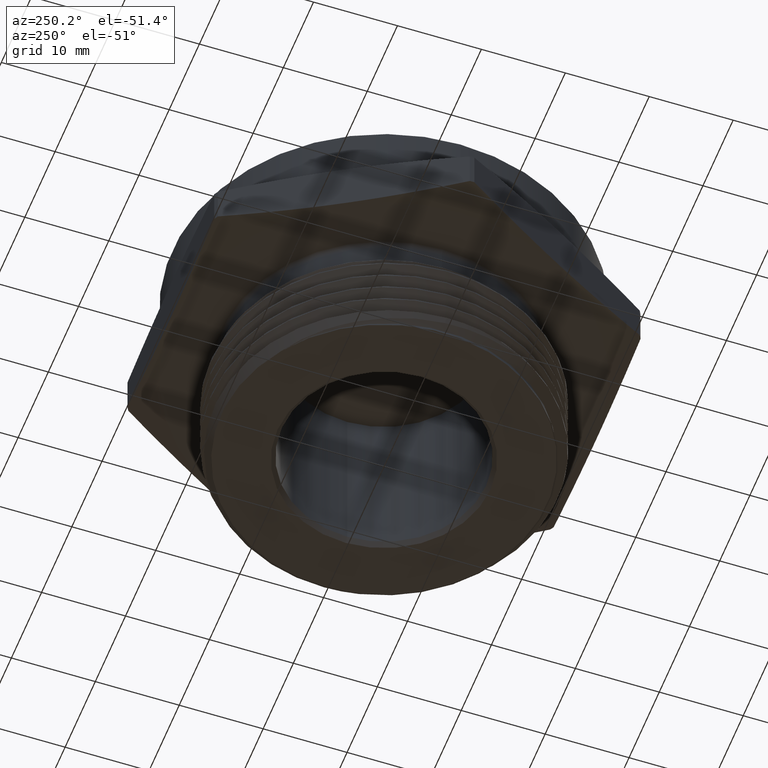
[diagram: clean part render]
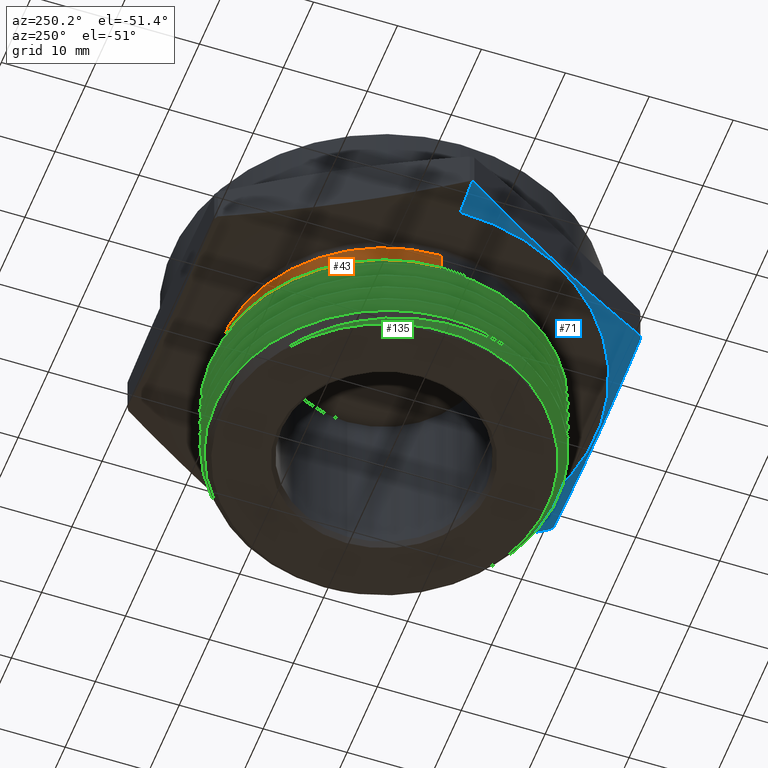
[diagram: same view with three faces highlighted in distinct colors, each labeled with its STEP entity id]
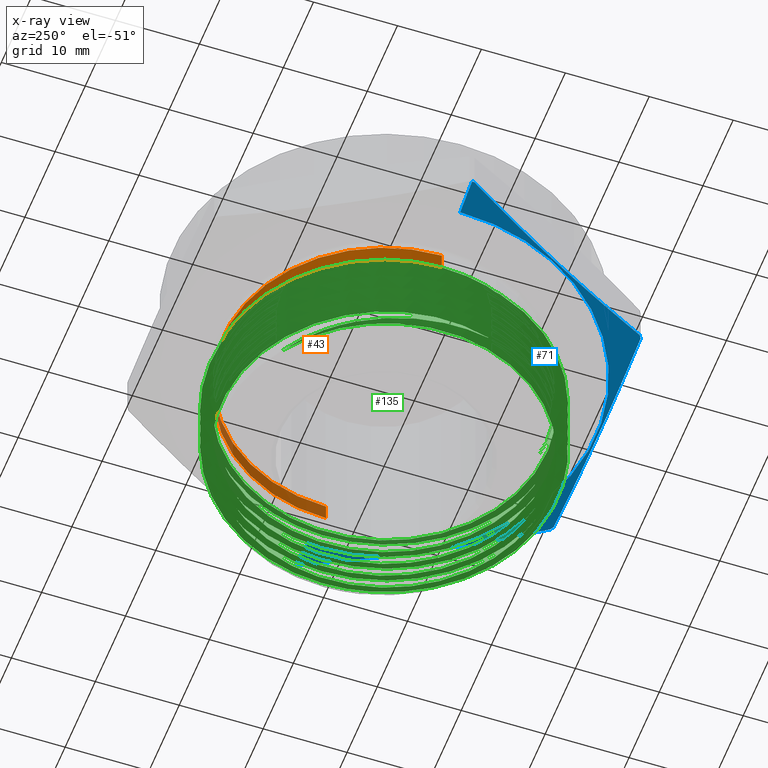
[diagram: x-ray of the same camera — body ghosted, the three highlighted faces saturated]
A machine part, auxiliary view with three faces highlighted in distinct colors.
The next image is the same camera in x-ray (body ghosted, the three faces saturated) — at least one of them is partly hidden behind the body in this view.
Their STEP definitions:

[orange] entity #43 — the highlighted cylindrical surface (partial cylindrical patch) has radius 19.1389 mm, axis along (-0, -0, 1).
#13 = ORIENTED_EDGE ( 'NONE', *, *, #2912, .T. ) ;
#14 = ORIENTED_EDGE ( 'NONE', *, *, #2914, .T. ) ;
#15 = ORIENTED_EDGE ( 'NONE', *, *, #2917, .F. ) ;
#16 = ORIENTED_EDGE ( 'NONE', *, *, #2922, .F. ) ;
#43 = ADVANCED_FACE ( 'NONE', ( #758 ), #761, .T. ) ;
#354 = AXIS2_PLACEMENT_3D ( 'NONE', #2388, #2389, #2390 ) ;
#357 = AXIS2_PLACEMENT_3D ( 'NONE', #2402, #2403, #2404 ) ;
#503 = VERTEX_POINT ( 'NONE', #1938 ) ;
#518 = VERTEX_POINT ( 'NONE', #1953 ) ;
#568 = VERTEX_POINT ( 'NONE', #1976 ) ;
#570 = VERTEX_POINT ( 'NONE', #1977 ) ;
#572 = LINE ( 'NONE', #2392, #577 ) ;
#573 = CIRCLE ( 'NONE', #354, 0.7534999999999999500 ) ;
#574 = CIRCLE ( 'NONE', #357, 0.7534999999999999500 ) ;
#577 = VECTOR ( 'NONE', #2387, 39.37007874015748100 ) ;
#581 = LINE ( 'NONE', #2454, #586 ) ;
#586 = VECTOR ( 'NONE', #2506, 39.37007874015748100 ) ;
#737 = EDGE_LOOP ( 'NONE', ( #13, #14, #15, #16 ) ) ;
#758 = FACE_OUTER_BOUND ( 'NONE', #737, .T. ) ;
#761 = CYLINDRICAL_SURFACE ( 'NONE', #3051, 0.7534999999999999500 ) ;
#1938 = CARTESIAN_POINT ( 'NONE',  ( -0.7534999999999999500, 9.227713631575306300E-017, -0.02500000000000004000 ) ) ;
#1953 = CARTESIAN_POINT ( 'NONE',  ( 0.7534999999999999500, 0.0000000000000000000, -0.02500000000000004000 ) ) ;
#1976 = CARTESIAN_POINT ( 'NONE',  ( 0.7534999999999999500, 0.0000000000000000000, -0.1073223304703361400 ) ) ;
#1977 = CARTESIAN_POINT ( 'NONE',  ( -0.7534999999999999500, 9.272549974439287200E-017, -0.1073223304703361400 ) ) ;
#2387 = DIRECTION ( 'NONE',  ( -0.0000000000000000000, -0.0000000000000000000, 1.000000000000000000 ) ) ;
#2388 = CARTESIAN_POINT ( 'NONE',  ( 0.0000000000000000000, 0.0000000000000000000, -0.1073223304703361400 ) ) ;
#2389 = DIRECTION ( 'NONE',  ( -0.0000000000000000000, -0.0000000000000000000, 1.000000000000000000 ) ) ;
#2390 = DIRECTION ( 'NONE',  ( 1.000000000000000000, 0.0000000000000000000, 0.0000000000000000000 ) ) ;
#2392 = CARTESIAN_POINT ( 'NONE',  ( -0.7534999999999999500, 9.227713631575306300E-017, 0.0000000000000000000 ) ) ;
#2402 = CARTESIAN_POINT ( 'NONE',  ( 0.0000000000000000000, 0.0000000000000000000, -0.02500000000000004000 ) ) ;
#2403 = DIRECTION ( 'NONE',  ( -0.0000000000000000000, -0.0000000000000000000, 1.000000000000000000 ) ) ;
#2404 = DIRECTION ( 'NONE',  ( 1.000000000000000000, 0.0000000000000000000, 0.0000000000000000000 ) ) ;
#2454 = CARTESIAN_POINT ( 'NONE',  ( 0.7534999999999999500, 0.0000000000000000000, 0.0000000000000000000 ) ) ;
#2506 = DIRECTION ( 'NONE',  ( -0.0000000000000000000, -0.0000000000000000000, 1.000000000000000000 ) ) ;
#2912 = EDGE_CURVE ( 'NONE', #568, #570, #573, .T. ) ;
#2914 = EDGE_CURVE ( 'NONE', #570, #503, #572, .T. ) ;
#2917 = EDGE_CURVE ( 'NONE', #518, #503, #574, .T. ) ;
#2922 = EDGE_CURVE ( 'NONE', #568, #518, #581, .T. ) ;
#3051 = AXIS2_PLACEMENT_3D ( 'NONE', #3372, #3376, #3375 ) ;
#3372 = CARTESIAN_POINT ( 'NONE',  ( 0.0000000000000000000, 0.0000000000000000000, 0.0000000000000000000 ) ) ;
#3375 = DIRECTION ( 'NONE',  ( 1.000000000000000000, 0.0000000000000000000, 0.0000000000000000000 ) ) ;
#3376 = DIRECTION ( 'NONE',  ( -0.0000000000000000000, -0.0000000000000000000, 1.000000000000000000 ) ) ;

[blue] entity #71 — the highlighted conical surface has half-angle 78 deg.
#71 = ADVANCED_FACE ( 'NONE', ( #2285 ), #2292, .T. ) ;
#148 = CIRCLE ( 'NONE', #384, 0.9925000000000004900 ) ;
#151 = CIRCLE ( 'NONE', #390, 1.148700538379251200 ) ;
#155 = CIRCLE ( 'NONE', #386, 1.148700538379251200 ) ;
#160 = CIRCLE ( 'NONE', #389, 1.148700538379251200 ) ;
#245 = ORIENTED_EDGE ( 'NONE', *, *, #2967, .T. ) ;
#281 = B_SPLINE_CURVE_WITH_KNOTS ( 'NONE', 3,
 ( #883, #874, #887, #888, #889, #890, #891, #892, #893 ),
 .UNSPECIFIED., .F., .F.,
 ( 4, 2, 1, 2, 4 ),
 ( 1.912036473927631200E-006, 0.007180647299409244000, 0.01435938256234456000, 0.02153811782527987500, 0.02871685308821519300 ),
 .UNSPECIFIED. ) ;
#284 = B_SPLINE_CURVE_WITH_KNOTS ( 'NONE', 3,
 ( #940, #939, #951, #952, #953, #954, #955, #956, #957, #958 ),
 .UNSPECIFIED., .F., .F.,
 ( 4, 2, 2, 2, 4 ),
 ( 0.05573734913687043000, 0.06293765452512199700, 0.07013795991337355700, 0.07733826530162511700, 0.08453857068987667700 ),
 .UNSPECIFIED. ) ;
#285 = B_SPLINE_CURVE_WITH_KNOTS ( 'NONE', 3,
 ( #950, #949, #959, #960, #961, #962, #963, #964, #965 ),
 .UNSPECIFIED., .F., .F.,
 ( 4, 2, 1, 2, 4 ),
 ( 1.912036473834167500E-006, 0.007180647299409155500, 0.01435938256234447700, 0.02153811782527979500, 0.02871685308821511300 ),
 .UNSPECIFIED. ) ;
#306 = AXIS2_PLACEMENT_3D ( 'NONE', #3287, #3286, #3288 ) ;
#381 = AXIS2_PLACEMENT_3D ( 'NONE', #2773, #2774, #2775 ) ;
#384 = AXIS2_PLACEMENT_3D ( 'NONE', #866, #867, #868 ) ;
#386 = AXIS2_PLACEMENT_3D ( 'NONE', #894, #895, #896 ) ;
#389 = AXIS2_PLACEMENT_3D ( 'NONE', #908, #909, #910 ) ;
#390 = AXIS2_PLACEMENT_3D ( 'NONE', #923, #924, #925 ) ;
#430 = VERTEX_POINT ( 'NONE', #1887 ) ;
#436 = VERTEX_POINT ( 'NONE', #1899 ) ;
#442 = VERTEX_POINT ( 'NONE', #1905 ) ;
#451 = VERTEX_POINT ( 'NONE', #1914 ) ;
#455 = VERTEX_POINT ( 'NONE', #1918 ) ;
#495 = VERTEX_POINT ( 'NONE', #1933 ) ;
#497 = VERTEX_POINT ( 'NONE', #1934 ) ;
#513 = VERTEX_POINT ( 'NONE', #1948 ) ;
#521 = VERTEX_POINT ( 'NONE', #1956 ) ;
#529 = VERTEX_POINT ( 'NONE', #1964 ) ;
#599 = LINE ( 'NONE', #2569, #601 ) ;
#601 = VECTOR ( 'NONE', #2570, 39.37007874015748100 ) ;
#629 = CIRCLE ( 'NONE', #381, 1.148700538379251200 ) ;
#679 = LINE ( 'NONE', #1994, #682 ) ;
#682 = VECTOR ( 'NONE', #1985, 39.37007874015748900 ) ;
#707 = EDGE_LOOP ( 'NONE', ( #3102, #3106, #3122, #3120, #3121, #3119, #3100, #3098, #3099, #245 ) ) ;
#866 = CARTESIAN_POINT ( 'NONE',  ( 1.488511584291886200E-032, 0.0000000000000000000, 1.215461948153745400E-016 ) ) ;
#867 = DIRECTION ( 'NONE',  ( -1.224646799147349800E-016, -0.0000000000000000000, -1.000000000000000000 ) ) ;
#868 = DIRECTION ( 'NONE',  ( -1.000000000000000000, 0.0000000000000000000, 1.224646799147350000E-016 ) ) ;
#874 = CARTESIAN_POINT ( 'NONE',  ( 1.101548214248195600, -0.09206252593535706200, 0.02334762369427760200 ) ) ;
#883 = CARTESIAN_POINT ( 'NONE',  ( 1.148652776340947100, -0.01047503112242860600, 0.03320144936889993200 ) ) ;
#887 = CARTESIAN_POINT ( 'NONE',  ( 1.054443652155444600, -0.1736500207482855600, 0.01536662706060477500 ) ) ;
#888 = CARTESIAN_POINT ( 'NONE',  ( 0.9602345279699415800, -0.3368250103741423100, 0.004474208886918504300 ) ) ;
#889 = CARTESIAN_POINT ( 'NONE',  ( 0.8660254037844388200, -0.4999999999999991700, -0.001285860461868391000 ) ) ;
#890 = CARTESIAN_POINT ( 'NONE',  ( 0.7718162795989363900, -0.6631749896258564100, 0.004474208886918552000 ) ) ;
#891 = CARTESIAN_POINT ( 'NONE',  ( 0.6776071554134337500, -0.8263499792517130500, 0.01536662706060483800 ) ) ;
#892 = CARTESIAN_POINT ( 'NONE',  ( 0.6305025933206821500, -0.9079374740646416500, 0.02334762369427766100 ) ) ;
#893 = CARTESIAN_POINT ( 'NONE',  ( 0.5833980312279308800, -0.9895249688775699100, 0.03320144936889993200 ) ) ;
#894 = CARTESIAN_POINT ( 'NONE',  ( 4.066004869667627200E-018, 0.0000000000000000000, 0.03320144936890007100 ) ) ;
#895 = DIRECTION ( 'NONE',  ( -1.224646799147349800E-016, -0.0000000000000000000, -1.000000000000000000 ) ) ;
#896 = DIRECTION ( 'NONE',  ( -1.000000000000000000, 0.0000000000000000000, 1.226263133575788300E-016 ) ) ;
#908 = CARTESIAN_POINT ( 'NONE',  ( 4.066004869667627200E-018, 0.0000000000000000000, 0.03320144936890007100 ) ) ;
#909 = DIRECTION ( 'NONE',  ( -1.224646799147349800E-016, -0.0000000000000000000, -1.000000000000000000 ) ) ;
#910 = DIRECTION ( 'NONE',  ( -1.000000000000000000, 0.0000000000000000000, 1.226263133575788300E-016 ) ) ;
#923 = CARTESIAN_POINT ( 'NONE',  ( 4.066004869667627200E-018, 0.0000000000000000000, 0.03320144936890007100 ) ) ;
#924 = DIRECTION ( 'NONE',  ( -1.224646799147349800E-016, -0.0000000000000000000, -1.000000000000000000 ) ) ;
#925 = DIRECTION ( 'NONE',  ( -1.000000000000000000, 0.0000000000000000000, 1.226263133575788300E-016 ) ) ;
#939 = CARTESIAN_POINT ( 'NONE',  ( 0.4712474784352673800, -0.9999999999999998900, 0.02336873702814751300 ) ) ;
#940 = CARTESIAN_POINT ( 'NONE',  ( 0.5652547451130175400, -1.000000000000000000, 0.03320144936890000200 ) ) ;
#949 = CARTESIAN_POINT ( 'NONE',  ( -0.6305025933206811500, -0.9079374740646427600, 0.02334762369427789300 ) ) ;
#950 = CARTESIAN_POINT ( 'NONE',  ( -0.5833980312279295500, -0.9895249688775710200, 0.03320144936890014700 ) ) ;
#951 = CARTESIAN_POINT ( 'NONE',  ( 0.3771984945786786600, -1.000000000000000200, 0.01539587087096890000 ) ) ;
#952 = CARTESIAN_POINT ( 'NONE',  ( 0.1889872824914476900, -0.9999999999999998900, 0.004498828874571741300 ) ) ;
#953 = CARTESIAN_POINT ( 'NONE',  ( 0.09482434743077645900, -1.000000000000000200, 0.001606165116671556200 ) ) ;
#954 = CARTESIAN_POINT ( 'NONE',  ( -0.09363075394074912800, -1.000000000000000200, 0.001582259013867830600 ) ) ;
#955 = CARTESIAN_POINT ( 'NONE',  ( -0.1879229405540639700, -1.000000000000000200, 0.004451921798574782900 ) ) ;
#956 = CARTESIAN_POINT ( 'NONE',  ( -0.3766229811661875900, -1.000000000000000200, 0.01534796101603661800 ) ) ;
#957 = CARTESIAN_POINT ( 'NONE',  ( -0.4711164411830072700, -1.000000000000000200, 0.02335503115568769700 ) ) ;
#958 = CARTESIAN_POINT ( 'NONE',  ( -0.5652547451130169900, -1.000000000000000000, 0.03320144936889993200 ) ) ;
#959 = CARTESIAN_POINT ( 'NONE',  ( -0.6776071554134327500, -0.8263499792517142700, 0.01536662706060506000 ) ) ;
#960 = CARTESIAN_POINT ( 'NONE',  ( -0.7718162795989355100, -0.6631749896258571900, 0.004474208886918778400 ) ) ;
#961 = CARTESIAN_POINT ( 'NONE',  ( -0.8660254037844387100, -0.5000000000000006700, -0.001285860461868090600 ) ) ;
#962 = CARTESIAN_POINT ( 'NONE',  ( -0.9602345279699414600, -0.3368250103741436400, 0.004474208886918788800 ) ) ;
#963 = CARTESIAN_POINT ( 'NONE',  ( -1.054443652155444800, -0.1736500207482868700, 0.01536662706060508600 ) ) ;
#964 = CARTESIAN_POINT ( 'NONE',  ( -1.101548214248196300, -0.09206252593535831100, 0.02334762369427794900 ) ) ;
#965 = CARTESIAN_POINT ( 'NONE',  ( -1.148652776340947100, -0.01047503112242983500, 0.03320144936889993200 ) ) ;
#1887 = CARTESIAN_POINT ( 'NONE',  ( 0.5652547451130175400, -1.000000000000000000, 0.03320144936890000200 ) ) ;
#1899 = CARTESIAN_POINT ( 'NONE',  ( -0.5833980312279295500, -0.9895249688775710200, 0.03320144936890014700 ) ) ;
#1905 = CARTESIAN_POINT ( 'NONE',  ( 0.5833980312279308800, -0.9895249688775699100, 0.03320144936889993200 ) ) ;
#1914 = CARTESIAN_POINT ( 'NONE',  ( 1.148700538379251200, 0.0000000000000000000, 0.03320144936889993200 ) ) ;
#1918 = CARTESIAN_POINT ( 'NONE',  ( -1.148652776340947100, -0.01047503112242983500, 0.03320144936889993200 ) ) ;
#1933 = CARTESIAN_POINT ( 'NONE',  ( 1.148652776340947100, -0.01047503112242860600, 0.03320144936889993200 ) ) ;
#1934 = CARTESIAN_POINT ( 'NONE',  ( -0.5652547451130169900, -1.000000000000000000, 0.03320144936889993200 ) ) ;
#1948 = CARTESIAN_POINT ( 'NONE',  ( -1.148700538379251200, 0.0000000000000000000, 0.03320144936890021000 ) ) ;
#1956 = CARTESIAN_POINT ( 'NONE',  ( -0.9925000000000004900, 1.215461948153748600E-016, 2.430923896307490900E-016 ) ) ;
#1964 = CARTESIAN_POINT ( 'NONE',  ( 0.9925000000000004900, 0.0000000000000000000, 0.0000000000000000000 ) ) ;
#1985 = DIRECTION ( 'NONE',  ( 0.9781476007338054700, 0.0000000000000000000, 0.2079116908177598100 ) ) ;
#1994 = CARTESIAN_POINT ( 'NONE',  ( 0.9925000000000004900, 0.0000000000000000000, 0.0000000000000000000 ) ) ;
#2285 = FACE_OUTER_BOUND ( 'NONE', #707, .T. ) ;
#2292 = CONICAL_SURFACE ( 'NONE', #306, 0.9925000000000004900, 1.361356816555576500 ) ;
#2569 = CARTESIAN_POINT ( 'NONE',  ( -0.9925000000000004900, 1.215461948153748600E-016, 2.430923896307490900E-016 ) ) ;
#2570 = DIRECTION ( 'NONE',  ( -0.9781476007338054700, 1.197885328332318200E-016, 0.2079116908177600400 ) ) ;
#2773 = CARTESIAN_POINT ( 'NONE',  ( 4.066004869667627200E-018, 0.0000000000000000000, 0.03320144936890007100 ) ) ;
#2774 = DIRECTION ( 'NONE',  ( -1.224646799147349800E-016, -0.0000000000000000000, -1.000000000000000000 ) ) ;
#2775 = DIRECTION ( 'NONE',  ( -1.000000000000000000, 0.0000000000000000000, 1.226263133575788300E-016 ) ) ;
#2897 = EDGE_CURVE ( 'NONE', #529, #451, #679, .T. ) ;
#2939 = EDGE_CURVE ( 'NONE', #521, #513, #599, .T. ) ;
#2967 = EDGE_CURVE ( 'NONE', #455, #513, #629, .T. ) ;
#2997 = EDGE_CURVE ( 'NONE', #529, #521, #148, .T. ) ;
#3002 = EDGE_CURVE ( 'NONE', #495, #442, #281, .T. ) ;
#3003 = EDGE_CURVE ( 'NONE', #451, #495, #155, .T. ) ;
#3008 = EDGE_CURVE ( 'NONE', #442, #430, #160, .T. ) ;
#3015 = EDGE_CURVE ( 'NONE', #497, #436, #151, .T. ) ;
#3020 = EDGE_CURVE ( 'NONE', #430, #497, #284, .T. ) ;
#3021 = EDGE_CURVE ( 'NONE', #436, #455, #285, .T. ) ;
#3098 = ORIENTED_EDGE ( 'NONE', *, *, #3015, .T. ) ;
#3099 = ORIENTED_EDGE ( 'NONE', *, *, #3021, .T. ) ;
#3100 = ORIENTED_EDGE ( 'NONE', *, *, #3020, .T. ) ;
#3102 = ORIENTED_EDGE ( 'NONE', *, *, #2939, .F. ) ;
#3106 = ORIENTED_EDGE ( 'NONE', *, *, #2997, .F. ) ;
#3119 = ORIENTED_EDGE ( 'NONE', *, *, #3008, .T. ) ;
#3120 = ORIENTED_EDGE ( 'NONE', *, *, #3003, .T. ) ;
#3121 = ORIENTED_EDGE ( 'NONE', *, *, #3002, .T. ) ;
#3122 = ORIENTED_EDGE ( 'NONE', *, *, #2897, .T. ) ;
#3286 = DIRECTION ( 'NONE',  ( 1.224646799147349800E-016, 0.0000000000000000000, 1.000000000000000000 ) ) ;
#3287 = CARTESIAN_POINT ( 'NONE',  ( 1.488511584291886200E-032, 0.0000000000000000000, 1.215461948153745400E-016 ) ) ;
#3288 = DIRECTION ( 'NONE',  ( 1.000000000000000000, 0.0000000000000000000, -1.224646799147350000E-016 ) ) ;

[green] entity #135 — the highlighted face is a freeform B-spline surface patch.
#19 = EDGE_LOOP ( 'NONE', ( #229, #230, #231, #232, #233, #234, #235, #236, #237, #238, #239, #240, #241, #242, #3123 ) ) ;
#135 = ADVANCED_FACE ( 'NONE', ( #675 ), #647, .F. ) ;
#191 = VERTEX_POINT ( 'NONE', #1888 ) ;
#229 = ORIENTED_EDGE ( 'NONE', *, *, #2985, .F. ) ;
#230 = ORIENTED_EDGE ( 'NONE', *, *, #3035, .T. ) ;
#231 = ORIENTED_EDGE ( 'NONE', *, *, #3043, .T. ) ;
#232 = ORIENTED_EDGE ( 'NONE', *, *, #3032, .T. ) ;
#233 = ORIENTED_EDGE ( 'NONE', *, *, #2953, .T. ) ;
#234 = ORIENTED_EDGE ( 'NONE', *, *, #2955, .T. ) ;
#235 = ORIENTED_EDGE ( 'NONE', *, *, #3026, .T. ) ;
#236 = ORIENTED_EDGE ( 'NONE', *, *, #2994, .F. ) ;
#237 = ORIENTED_EDGE ( 'NONE', *, *, #2969, .F. ) ;
#238 = ORIENTED_EDGE ( 'NONE', *, *, #2992, .F. ) ;
#239 = ORIENTED_EDGE ( 'NONE', *, *, #2981, .F. ) ;
#240 = ORIENTED_EDGE ( 'NONE', *, *, #2990, .F. ) ;
#241 = ORIENTED_EDGE ( 'NONE', *, *, #2977, .F. ) ;
#242 = ORIENTED_EDGE ( 'NONE', *, *, #2988, .F. ) ;
#262 =( BOUNDED_CURVE ( )  B_SPLINE_CURVE ( 2, ( #2771, #2772, #2779, #2780, #2781, #2782, #2783, #2784, #2785, #2786, #2787 ),
 .UNSPECIFIED., .F., .F. ) 
 B_SPLINE_CURVE_WITH_KNOTS ( ( 3, 2, 2, 2, 2, 3 ),
 ( 0.6428571426823738200, 0.6571428571428571400, 0.6714285714285713700, 0.6857142857142857200, 0.6999999999999999600, 0.7142857141109452100 ),
 .UNSPECIFIED. ) 
 CURVE ( )  GEOMETRIC_REPRESENTATION_ITEM ( )  RATIONAL_B_SPLINE_CURVE ( ( 1.000000000000000000, 0.9510565162951535300, 1.000000000000000000, 0.9510565162951535300, 1.000000000000000000, 0.9510565162951535300, 1.000000000000000000, 0.9510565162951535300, 1.000000000000000000, 0.9510565162951535300, 1.000000000000000000 ) ) 
 REPRESENTATION_ITEM ( '' )  );
#264 =( BOUNDED_CURVE ( )  B_SPLINE_CURVE ( 2, ( #2801, #2790, #2805, #2806, #2807, #2808, #2809, #2810, #2811, #2812, #2813 ),
 .UNSPECIFIED., .F., .F. ) 
 B_SPLINE_CURVE_WITH_KNOTS ( ( 3, 2, 2, 2, 2, 3 ),
 ( 0.2142857141109451900, 0.2285714285714285600, 0.2428571428571428500, 0.2571428571428571200, 0.2714285714285714100, 0.2857142855395166100 ),
 .UNSPECIFIED. ) 
 CURVE ( )  GEOMETRIC_REPRESENTATION_ITEM ( )  RATIONAL_B_SPLINE_CURVE ( ( 1.000000000000000000, 0.9510565162951535300, 1.000000000000000000, 0.9510565162951535300, 1.000000000000000000, 0.9510565162951535300, 1.000000000000000000, 0.9510565162951535300, 1.000000000000000000, 0.9510565162951535300, 1.000000000000000000 ) ) 
 REPRESENTATION_ITEM ( '' )  );
#266 =( BOUNDED_CURVE ( )  B_SPLINE_CURVE ( 2, ( #2827, #2816, #2831, #2832, #2833, #2834, #2835, #2836, #2837, #2838, #2839 ),
 .UNSPECIFIED., .F., .F. ) 
 B_SPLINE_CURVE_WITH_KNOTS ( ( 3, 2, 2, 2, 2, 3 ),
 ( 0.3571428569680880600, 0.3714285714285714400, 0.3857142857142857300, 0.4000000000000000200, 0.4142857142857143100, 0.4285714283966594600 ),
 .UNSPECIFIED. ) 
 CURVE ( )  GEOMETRIC_REPRESENTATION_ITEM ( )  RATIONAL_B_SPLINE_CURVE ( ( 1.000000000000000000, 0.9510565162951535300, 1.000000000000000000, 0.9510565162951535300, 1.000000000000000000, 0.9510565162951535300, 1.000000000000000000, 0.9510565162951535300, 1.000000000000000000, 0.9510565162951535300, 1.000000000000000000 ) ) 
 REPRESENTATION_ITEM ( '' )  );
#268 =( BOUNDED_CURVE ( )  B_SPLINE_CURVE ( 2, ( #2853, #2842, #2857, #2858, #2859, #2860, #2861, #2862, #2863, #2864, #2865 ),
 .UNSPECIFIED., .F., .F. ) 
 B_SPLINE_CURVE_WITH_KNOTS ( ( 3, 2, 2, 2, 2, 3 ),
 ( 0.4999999998252309100, 0.5142857142857142300, 0.5285714285714285800, 0.5428571428571428200, 0.5571428571428571600, 0.5714285712538023100 ),
 .UNSPECIFIED. ) 
 CURVE ( )  GEOMETRIC_REPRESENTATION_ITEM ( )  RATIONAL_B_SPLINE_CURVE ( ( 1.000000000000000000, 0.9510565162951535300, 1.000000000000000000, 0.9510565162951535300, 1.000000000000000000, 0.9510565162951535300, 1.000000000000000000, 0.9510565162951535300, 1.000000000000000000, 0.9510565162951535300, 1.000000000000000000 ) ) 
 REPRESENTATION_ITEM ( '' )  );
#270 =( BOUNDED_CURVE ( )  B_SPLINE_CURVE ( 2, ( #2878, #2867, #2882, #2883, #2884, #2885, #2886, #2887, #2888, #2889, #2890 ),
 .UNSPECIFIED., .F., .F. ) 
 B_SPLINE_CURVE_WITH_KNOTS ( ( 3, 2, 2, 2, 2, 3 ),
 ( 0.1564270591419400800, 0.1571428571428571400, 0.1714285714285714300, 0.1857142857142857200, 0.2000000000000000100, 0.2142857141109451900 ),
 .UNSPECIFIED. ) 
 CURVE ( )  GEOMETRIC_REPRESENTATION_ITEM ( )  RATIONAL_B_SPLINE_CURVE ( ( 0.9953410440564072200, 0.9975476446544308000, 1.000000000000000000, 0.9510565162951535300, 1.000000000000000000, 0.9510565162951535300, 1.000000000000000000, 0.9510565162951535300, 1.000000000000000000, 0.9510565162951535300, 1.000000000000000000 ) ) 
 REPRESENTATION_ITEM ( '' )  );
#272 =( BOUNDED_CURVE ( )  B_SPLINE_CURVE ( 2, ( #777, #778, #783, #784, #785, #786, #787, #788, #789, #790, #791 ),
 .UNSPECIFIED., .F., .F. ) 
 B_SPLINE_CURVE_WITH_KNOTS ( ( 3, 2, 2, 2, 2, 3 ),
 ( 0.2857142855395166100, 0.2999999999999999900, 0.3142857142857142800, 0.3285714285714285700, 0.3428571428571428600, 0.3571428569680880600 ),
 .UNSPECIFIED. ) 
 CURVE ( )  GEOMETRIC_REPRESENTATION_ITEM ( )  RATIONAL_B_SPLINE_CURVE ( ( 1.000000000000000000, 0.9510565162951535300, 1.000000000000000000, 0.9510565162951535300, 1.000000000000000000, 0.9510565162951535300, 1.000000000000000000, 0.9510565162951535300, 1.000000000000000000, 0.9510565162951535300, 1.000000000000000000 ) ) 
 REPRESENTATION_ITEM ( '' )  );
#274 =( BOUNDED_CURVE ( )  B_SPLINE_CURVE ( 2, ( #793, #792, #805, #806, #807, #808, #809, #810, #811, #812, #813 ),
 .UNSPECIFIED., .F., .F. ) 
 B_SPLINE_CURVE_WITH_KNOTS ( ( 3, 2, 2, 2, 2, 3 ),
 ( 0.4285714283966594600, 0.4428571428571428400, 0.4571428571428571300, 0.4714285714285714200, 0.4857142857142857100, 0.4999999998252309100 ),
 .UNSPECIFIED. ) 
 CURVE ( )  GEOMETRIC_REPRESENTATION_ITEM ( )  RATIONAL_B_SPLINE_CURVE ( ( 1.000000000000000000, 0.9510565162951535300, 1.000000000000000000, 0.9510565162951535300, 1.000000000000000000, 0.9510565162951535300, 1.000000000000000000, 0.9510565162951535300, 1.000000000000000000, 0.9510565162951535300, 1.000000000000000000 ) ) 
 REPRESENTATION_ITEM ( '' )  );
#276 =( BOUNDED_CURVE ( )  B_SPLINE_CURVE ( 2, ( #815, #814, #827, #828, #829, #830, #831, #832, #833, #834, #835 ),
 .UNSPECIFIED., .F., .F. ) 
 B_SPLINE_CURVE_WITH_KNOTS ( ( 3, 2, 2, 2, 2, 3 ),
 ( 0.5714285712538023100, 0.5857142857142857400, 0.5999999999999999800, 0.6142857142857143200, 0.6285714285714285600, 0.6428571426823738200 ),
 .UNSPECIFIED. ) 
 CURVE ( )  GEOMETRIC_REPRESENTATION_ITEM ( )  RATIONAL_B_SPLINE_CURVE ( ( 1.000000000000000000, 0.9510565162951535300, 1.000000000000000000, 0.9510565162951535300, 1.000000000000000000, 0.9510565162951535300, 1.000000000000000000, 0.9510565162951535300, 1.000000000000000000, 0.9510565162951535300, 1.000000000000000000 ) ) 
 REPRESENTATION_ITEM ( '' )  );
#278 =( BOUNDED_CURVE ( )  B_SPLINE_CURVE ( 2, ( #837, #836, #847, #848, #849, #850, #851, #852, #853 ),
 .UNSPECIFIED., .F., .F. ) 
 B_SPLINE_CURVE_WITH_KNOTS ( ( 3, 2, 2, 2, 3 ),
 ( 0.7142857141109452100, 0.7285714285714285400, 0.7428571428571428800, 0.7571428571428571200, 0.7628723149435113800 ),
 .UNSPECIFIED. ) 
 CURVE ( )  GEOMETRIC_REPRESENTATION_ITEM ( )  RATIONAL_B_SPLINE_CURVE ( ( 1.000000000000000000, 0.9510565162951535300, 1.000000000000000000, 0.9510565162951535300, 1.000000000000000000, 0.9510565162951535300, 1.000000000000000000, 0.9803706262847251600, 0.9764864461391418200 ) ) 
 REPRESENTATION_ITEM ( '' )  );
#287 = B_SPLINE_CURVE_WITH_KNOTS ( 'NONE', 3,
 ( #969, #978, #1007, #1008, #1009, #1010, #1011, #1012, #1013, #1014, #1015, #1016, #1017, #1018, #1019, #1020, #1021, #1022 ),
 .UNSPECIFIED., .F., .F.,
 ( 4, 2, 2, 2, 2, 2, 2, 2, 4 ),
 ( 0.09790251612987734000, 0.1030868499287503300, 0.1043829333784685900, 0.1056790168281868400, 0.1082711837276233400, 0.1108633506270598500, 0.1134555175264963400, 0.1160476844259328300, 0.1186398513253693300 ),
 .UNSPECIFIED. ) ;
#289 =( BOUNDED_CURVE ( )  B_SPLINE_CURVE ( 2, ( #1061, #1062, #1067, #1068, #1069, #1070, #1071, #1072, #1073, #1074, #1075, #1076, #1077, #1078, #1079, #1080, #1081, #1082, #1083, #1084, #1085, #1086, #1087, #1088, #1089, #1090, #1091, #1092, #1093, #1094, #1095, #1096, #1097, #1098, #1099, #1100, #1101, #1102, #1103, #1104, #1105, #1106, #1107, #1108, #1109, #1110, #1111, #1112, #1113, #1114, #1115, #1116, #1117, #1118, #1119, #1120, #1121, #1122, #1123, #1124, #1125, #1126, #1127, #1128, #1129, #1130, #1131, #1132, #1133, #1134, #1135, #1136, #1137, #1138, #1139, #1140, #1141, #1142, #1143, #1144, #1145, #1146, #1147, #1148, #1149, #1150, #1151, #1152, #1153, #1154, #1155, #1156, #1157, #1158, #1159, #1160, #1161, #1162, #1163, #1164, #1165, #1166, #1167, #1168, #1169, #1170, #1171, #1172, #1173, #1174, #1175 ),
 .UNSPECIFIED., .F., .F. ) 
 B_SPLINE_CURVE_WITH_KNOTS ( ( 3, 2, 2, 2, 2, 2, 2, 2, 2, 2, 2, 2, 2, 2, 2, 2, 2, 2, 2, 2, 2, 2, 2, 2, 2, 2, 2, 2, 2, 2, 2, 2, 2, 2, 2, 2, 2, 2, 2, 2, 2, 2, 2, 2, 2, 2, 2, 2, 2, 2, 2, 2, 2, 2, 2, 3 ),
 ( 0.1205417353021446400, 0.1285714285714285600, 0.1428571428571428500, 0.1571428571428571400, 0.1714285714285714300, 0.1857142857142857200, 0.2000000000000000100, 0.2142857142857142700, 0.2285714285714285600, 0.2428571428571428800, 0.2571428571428571200, 0.2714285714285714100, 0.2857142857142857000, 0.2999999999999999900, 0.3142857142857142800, 0.3285714285714285700, 0.3428571428571428600, 0.3571428571428571500, 0.3714285714285714400, 0.3857142857142857300, 0.4000000000000000200, 0.4142857142857143100, 0.4285714285714285500, 0.4428571428571428400, 0.4571428571428570700, 0.4714285714285713600, 0.4857142857142857700, 0.5000000000000000000, 0.5142857142857142300, 0.5285714285714285800, 0.5428571428571428200, 0.5571428571428571600, 0.5714285714285714000, 0.5857142857142857400, 0.5999999999999999800, 0.6142857142857143200, 0.6285714285714285600, 0.6428571428571429000, 0.6571428571428571400, 0.6714285714285713700, 0.6857142857142857200, 0.6999999999999999600, 0.7142857142857143000, 0.7285714285714285400, 0.7428571428571428800, 0.7571428571428571200, 0.7714285714285715700, 0.7857142857142857000, 0.8000000000000000400, 0.8142857142857142800, 0.8285714285714286300, 0.8428571428571428600, 0.8571428571428571000, 0.8714285714285713300, 0.8857142857142856800, 0.8968897500901599200 ),
 .UNSPECIFIED. ) 
 CURVE ( )  GEOMETRIC_REPRESENTATION_ITEM ( )  RATIONAL_B_SPLINE_CURVE ( ( 0.9759054894358669700, 0.9724899186823921000, 1.000000000000000000, 0.9510565162951535300, 1.000000000000000000, 0.9510565162951535300, 1.000000000000000000, 0.9510565162951535300, 1.000000000000000000, 0.9510565162951535300, 1.000000000000000000, 0.9510565162951535300, 1.000000000000000000, 0.9510565162951535300, 1.000000000000000000, 0.9510565162951535300, 1.000000000000000000, 0.9510565162951535300, 1.000000000000000000, 0.9510565162951535300, 1.000000000000000000, 0.9510565162951535300, 1.000000000000000000, 0.9510565162951535300, 1.000000000000000000, 0.9510565162951535300, 1.000000000000000000, 0.9510565162951535300, 1.000000000000000000, 0.9510565162951535300, 1.000000000000000000, 0.9510565162951535300, 1.000000000000000000, 0.9510565162951535300, 1.000000000000000000, 0.9510565162951535300, 1.000000000000000000, 0.9510565162951535300, 1.000000000000000000, 0.9510565162951535300, 1.000000000000000000, 0.9510565162951535300, 1.000000000000000000, 0.9510565162951535300, 1.000000000000000000, 0.9510565162951535300, 1.000000000000000000, 0.9510565162951535300, 1.000000000000000000, 0.9510565162951535300, 1.000000000000000000, 0.9510565162951535300, 1.000000000000000000, 0.9510565162951535300, 1.000000000000000000, 0.9510565162951535300, 1.000000000000000000, 0.9510565162951535300, 1.000000000000000000, 0.9510565162951535300, 1.000000000000000000, 0.9510565162951535300, 1.000000000000000000, 0.9510565162951535300, 1.000000000000000000, 0.9510565162951535300, 1.000000000000000000, 0.9510565162951535300, 1.000000000000000000, 0.9510565162951535300, 1.000000000000000000, 0.9510565162951535300, 1.000000000000000000, 0.9510565162951535300, 1.000000000000000000, 0.9510565162951535300, 1.000000000000000000, 0.9510565162951535300, 1.000000000000000000, 0.9510565162951535300, 1.000000000000000000, 0.9510565162951535300, 1.000000000000000000, 0.9510565162951535300, 1.000000000000000000, 0.9510565162951535300, 1.000000000000000000, 0.9510565162951535300, 1.000000000000000000, 0.9510565162951535300, 1.000000000000000000, 0.9510565162951535300, 1.000000000000000000, 0.9510565162951535300, 1.000000000000000000, 0.9510565162951535300, 1.000000000000000000, 0.9510565162951535300, 1.000000000000000000, 0.9510565162951535300, 1.000000000000000000, 0.9510565162951535300, 1.000000000000000000, 0.9510565162951535300, 1.000000000000000000, 0.9510565162951535300, 1.000000000000000000, 0.9510565162951535300, 1.000000000000000000, 0.9617123688997716300, 0.9833282258351534500 ) ) 
 REPRESENTATION_ITEM ( '' )  );
#292 = B_SPLINE_CURVE_WITH_KNOTS ( 'NONE', 3,
 ( #1290, #1289, #1293, #1294, #1295, #1296, #1297, #1298, #1299 ),
 .UNSPECIFIED., .F., .F.,
 ( 4, 2, 1, 2, 4 ),
 ( 0.0000000000000000000, 0.003062032755973500500, 0.006124065511947001000, 0.009186098267920501900, 0.01224813102389400200 ),
 .UNSPECIFIED. ) ;
#293 = B_SPLINE_CURVE_WITH_KNOTS ( 'NONE', 3,
 ( #1315, #1316, #1322, #1323, #1324, #1325, #1326, #1327, #1328, #1329, #1330, #1331, #1332, #1333, #1334, #1335, #1336, #1337, #1338, #1339 ),
 .UNSPECIFIED., .F., .F.,
 ( 4, 2, 2, 2, 2, 2, 2, 2, 2, 4 ),
 ( 0.01224813102389400200, 0.01469252175664076700, 0.01713691248938753100, 0.02202569395488106200, 0.02324788932125444400, 0.02447008468762782600, 0.02691447542037458300, 0.02935886615312133900, 0.03058106151949471800, 0.03180325688586808900 ),
 .UNSPECIFIED. ) ;
#427 = VERTEX_POINT ( 'NONE', #1892 ) ;
#434 = VERTEX_POINT ( 'NONE', #1894 ) ;
#435 = VERTEX_POINT ( 'NONE', #1898 ) ;
#441 = VERTEX_POINT ( 'NONE', #1904 ) ;
#443 = VERTEX_POINT ( 'NONE', #1906 ) ;
#448 = VERTEX_POINT ( 'NONE', #1911 ) ;
#452 = VERTEX_POINT ( 'NONE', #1915 ) ;
#459 = VERTEX_POINT ( 'NONE', #1922 ) ;
#464 = VERTEX_POINT ( 'NONE', #1927 ) ;
#493 = VERTEX_POINT ( 'NONE', #1931 ) ;
#502 = VERTEX_POINT ( 'NONE', #1937 ) ;
#507 = VERTEX_POINT ( 'NONE', #1942 ) ;
#516 = VERTEX_POINT ( 'NONE', #1951 ) ;
#524 = VERTEX_POINT ( 'NONE', #1959 ) ;
#647 =( BOUNDED_SURFACE ( )  B_SPLINE_SURFACE ( 1, 2, ( 
 ( #1604, #1606, #1607, #1608, #1609, #1610, #1611, #1612, #1613, #1614, #1615, #1616, #1617, #1618, #1619, #1620, #1621, #1622, #1623, #1624, #1625, #1626, #1627, #1628, #1629, #1630, #1631, #1632, #1633, #1634, #1635, #1636, #1637, #1638, #1639, #1640, #1641, #1642, #1643, #1644, #1645, #1646, #1647, #1648, #1649, #1650, #1651, #1652, #1653, #1654, #1655, #1656, #1657, #1658, #1659, #1660, #1661, #1662, #1663, #1664, #1665, #1666, #1667, #1668, #1669, #1670, #1671, #1672, #1673, #1674, #1675, #1676, #1677, #1678, #1679, #1680, #1681, #1682, #1683, #1684, #1685, #1686, #1687, #1688, #1689, #1690, #1691, #1692, #1693, #1694, #1695, #1696, #1697, #1698, #1699, #1700, #1701, #1702, #1703, #1704, #1705, #1706, #1707, #1708, #1709, #1710, #1711, #1712, #1713, #1714, #1715, #1716, #1717, #1718, #1719, #1720, #1721, #1722, #1723, #1724, #1725, #1726, #1727, #1728, #1729, #1730, #1731, #1732, #1733, #1734, #1735, #1736, #1737, #1738, #1739, #1740, #1741, #1742, #1743, #1744, #1745 ),
 ( #1746, #1747, #1748, #1749, #1750, #1751, #1752, #1753, #1754, #1755, #1756, #1757, #1758, #1759, #1760, #1761, #1762, #1763, #1764, #1765, #1766, #1767, #1768, #1769, #1770, #1771, #1772, #1773, #1774, #1775, #1776, #1777, #1778, #1779, #1780, #1781, #1782, #1783, #1784, #1785, #1786, #1787, #1788, #1789, #1790, #1791, #1792, #1793, #1794, #1795, #1796, #1797, #1798, #1799, #1800, #1801, #1802, #1803, #1804, #1805, #1806, #1807, #1808, #1809, #1810, #1811, #1812, #1813, #1814, #1815, #1816, #1817, #1818, #1819, #1820, #1821, #1822, #1823, #1824, #1825, #1826, #1827, #1828, #1829, #1830, #1831, #1832, #1833, #1834, #1835, #1836, #1837, #1838, #1839, #1840, #1841, #1842, #1843, #1844, #1845, #1846, #1847, #1848, #1849, #1850, #1851, #1852, #1853, #1854, #1855, #1856, #1857, #1858, #1859, #1860, #1861, #1862, #1863, #1864, #1865, #1866, #1867, #1868, #1869, #1870, #1871, #1872, #1873, #1874, #1875, #1876, #1877, #1878, #1879, #1880, #1881, #1882, #1883, #1884, #1885, #1886 ) ),
 .UNSPECIFIED., .F., .F., .T. ) 
 B_SPLINE_SURFACE_WITH_KNOTS ( ( 2, 2 ),
 ( 3, 2, 2, 2, 2, 2, 2, 2, 2, 2, 2, 2, 2, 2, 2, 2, 2, 2, 2, 2, 2, 2, 2, 2, 2, 2, 2, 2, 2, 2, 2, 2, 2, 2, 2, 2, 2, 2, 2, 2, 2, 2, 2, 2, 2, 2, 2, 2, 2, 2, 2, 2, 2, 2, 2, 2, 2, 2, 2, 2, 2, 2, 2, 2, 2, 2, 2, 2, 2, 2, 3 ),
 ( 0.0000000000000000000, 1.000000000000000000 ),
 ( 0.0000000000000000000, 0.01428571428571428500, 0.02857142857142857100, 0.04285714285714285800, 0.05714285714285714100, 0.07142857142857142500, 0.08571428571428571500, 0.1000000000000000100, 0.1142857142857142800, 0.1285714285714285600, 0.1428571428571428500, 0.1571428571428571400, 0.1714285714285714300, 0.1857142857142857200, 0.2000000000000000100, 0.2142857142857142700, 0.2285714285714285600, 0.2428571428571428500, 0.2571428571428571200, 0.2714285714285714100, 0.2857142857142857000, 0.2999999999999999900, 0.3142857142857142800, 0.3285714285714285700, 0.3428571428571428600, 0.3571428571428571500, 0.3714285714285714400, 0.3857142857142857300, 0.4000000000000000200, 0.4142857142857143100, 0.4285714285714285500, 0.4428571428571428400, 0.4571428571428571300, 0.4714285714285714200, 0.4857142857142857100, 0.5000000000000000000, 0.5142857142857142300, 0.5285714285714285800, 0.5428571428571428200, 0.5571428571428571600, 0.5714285714285714000, 0.5857142857142857400, 0.5999999999999999800, 0.6142857142857143200, 0.6285714285714285600, 0.6428571428571429000, 0.6571428571428571400, 0.6714285714285713700, 0.6857142857142857200, 0.6999999999999999600, 0.7142857142857143000, 0.7285714285714285400, 0.7428571428571428800, 0.7571428571428571200, 0.7714285714285714600, 0.7857142857142857000, 0.8000000000000000400, 0.8142857142857142800, 0.8285714285714286300, 0.8428571428571428600, 0.8571428571428571000, 0.8714285714285714400, 0.8857142857142856800, 0.9000000000000000200, 0.9142857142857142600, 0.9285714285714286000, 0.9428571428571428400, 0.9571428571428571800, 0.9714285714285714200, 0.9857142857142857700, 1.000000000000000000 ),
 .UNSPECIFIED. ) 
 GEOMETRIC_REPRESENTATION_ITEM ( )  RATIONAL_B_SPLINE_SURFACE ( (
 ( 1.000000000000000000, 0.9510565162951535300, 1.000000000000000000, 0.9510565162951535300, 1.000000000000000000, 0.9510565162951535300, 1.000000000000000000, 0.9510565162951535300, 1.000000000000000000, 0.9510565162951535300, 1.000000000000000000, 0.9510565162951535300, 1.000000000000000000, 0.9510565162951535300, 1.000000000000000000, 0.9510565162951535300, 1.000000000000000000, 0.9510565162951535300, 1.000000000000000000, 0.9510565162951535300, 1.000000000000000000, 0.9510565162951535300, 1.000000000000000000, 0.9510565162951535300, 1.000000000000000000, 0.9510565162951535300, 1.000000000000000000, 0.9510565162951535300, 1.000000000000000000, 0.9510565162951535300, 1.000000000000000000, 0.9510565162951535300, 1.000000000000000000, 0.9510565162951535300, 1.000000000000000000, 0.9510565162951535300, 1.000000000000000000, 0.9510565162951535300, 1.000000000000000000, 0.9510565162951535300, 1.000000000000000000, 0.9510565162951535300, 1.000000000000000000, 0.9510565162951535300, 1.000000000000000000, 0.9510565162951535300, 1.000000000000000000, 0.9510565162951535300, 1.000000000000000000, 0.9510565162951535300, 1.000000000000000000, 0.9510565162951535300, 1.000000000000000000, 0.9510565162951535300, 1.000000000000000000, 0.9510565162951535300, 1.000000000000000000, 0.9510565162951535300, 1.000000000000000000, 0.9510565162951535300, 1.000000000000000000, 0.9510565162951535300, 1.000000000000000000, 0.9510565162951535300, 1.000000000000000000, 0.9510565162951535300, 1.000000000000000000, 0.9510565162951535300, 1.000000000000000000, 0.9510565162951535300, 1.000000000000000000, 0.9510565162951535300, 1.000000000000000000, 0.9510565162951535300, 1.000000000000000000, 0.9510565162951535300, 1.000000000000000000, 0.9510565162951535300, 1.000000000000000000, 0.9510565162951535300, 1.000000000000000000, 0.9510565162951535300, 1.000000000000000000, 0.9510565162951535300, 1.000000000000000000, 0.9510565162951535300, 1.000000000000000000, 0.9510565162951535300, 1.000000000000000000, 0.9510565162951535300, 1.000000000000000000, 0.9510565162951535300, 1.000000000000000000, 0.9510565162951535300, 1.000000000000000000, 0.9510565162951535300, 1.000000000000000000, 0.9510565162951535300, 1.000000000000000000, 0.9510565162951535300, 1.000000000000000000, 0.9510565162951535300, 1.000000000000000000, 0.9510565162951535300, 1.000000000000000000, 0.9510565162951535300, 1.000000000000000000, 0.9510565162951535300, 1.000000000000000000, 0.9510565162951535300, 1.000000000000000000, 0.9510565162951535300, 1.000000000000000000, 0.9510565162951535300, 1.000000000000000000, 0.9510565162951535300, 1.000000000000000000, 0.9510565162951535300, 1.000000000000000000, 0.9510565162951535300, 1.000000000000000000, 0.9510565162951535300, 1.000000000000000000, 0.9510565162951535300, 1.000000000000000000, 0.9510565162951535300, 1.000000000000000000, 0.9510565162951535300, 1.000000000000000000, 0.9510565162951535300, 1.000000000000000000, 0.9510565162951535300, 1.000000000000000000, 0.9510565162951535300, 1.000000000000000000, 0.9510565162951535300, 1.000000000000000000, 0.9510565162951535300, 1.000000000000000000, 0.9510565162951535300, 1.000000000000000000),
 ( 1.000000000000000000, 0.9510565162951535300, 1.000000000000000000, 0.9510565162951535300, 1.000000000000000000, 0.9510565162951535300, 1.000000000000000000, 0.9510565162951535300, 1.000000000000000000, 0.9510565162951535300, 1.000000000000000000, 0.9510565162951535300, 1.000000000000000000, 0.9510565162951535300, 1.000000000000000000, 0.9510565162951535300, 1.000000000000000000, 0.9510565162951535300, 1.000000000000000000, 0.9510565162951535300, 1.000000000000000000, 0.9510565162951535300, 1.000000000000000000, 0.9510565162951535300, 1.000000000000000000, 0.9510565162951535300, 1.000000000000000000, 0.9510565162951535300, 1.000000000000000000, 0.9510565162951535300, 1.000000000000000000, 0.9510565162951535300, 1.000000000000000000, 0.9510565162951535300, 1.000000000000000000, 0.9510565162951535300, 1.000000000000000000, 0.9510565162951535300, 1.000000000000000000, 0.9510565162951535300, 1.000000000000000000, 0.9510565162951535300, 1.000000000000000000, 0.9510565162951535300, 1.000000000000000000, 0.9510565162951535300, 1.000000000000000000, 0.9510565162951535300, 1.000000000000000000, 0.9510565162951535300, 1.000000000000000000, 0.9510565162951535300, 1.000000000000000000, 0.9510565162951535300, 1.000000000000000000, 0.9510565162951535300, 1.000000000000000000, 0.9510565162951535300, 1.000000000000000000, 0.9510565162951535300, 1.000000000000000000, 0.9510565162951535300, 1.000000000000000000, 0.9510565162951535300, 1.000000000000000000, 0.9510565162951535300, 1.000000000000000000, 0.9510565162951535300, 1.000000000000000000, 0.9510565162951535300, 1.000000000000000000, 0.9510565162951535300, 1.000000000000000000, 0.9510565162951535300, 1.000000000000000000, 0.9510565162951535300, 1.000000000000000000, 0.9510565162951535300, 1.000000000000000000, 0.9510565162951535300, 1.000000000000000000, 0.9510565162951535300, 1.000000000000000000, 0.9510565162951535300, 1.000000000000000000, 0.9510565162951535300, 1.000000000000000000, 0.9510565162951535300, 1.000000000000000000, 0.9510565162951535300, 1.000000000000000000, 0.9510565162951535300, 1.000000000000000000, 0.9510565162951535300, 1.000000000000000000, 0.9510565162951535300, 1.000000000000000000, 0.9510565162951535300, 1.000000000000000000, 0.9510565162951535300, 1.000000000000000000, 0.9510565162951535300, 1.000000000000000000, 0.9510565162951535300, 1.000000000000000000, 0.9510565162951535300, 1.000000000000000000, 0.9510565162951535300, 1.000000000000000000, 0.9510565162951535300, 1.000000000000000000, 0.9510565162951535300, 1.000000000000000000, 0.9510565162951535300, 1.000000000000000000, 0.9510565162951535300, 1.000000000000000000, 0.9510565162951535300, 1.000000000000000000, 0.9510565162951535300, 1.000000000000000000, 0.9510565162951535300, 1.000000000000000000, 0.9510565162951535300, 1.000000000000000000, 0.9510565162951535300, 1.000000000000000000, 0.9510565162951535300, 1.000000000000000000, 0.9510565162951535300, 1.000000000000000000, 0.9510565162951535300, 1.000000000000000000, 0.9510565162951535300, 1.000000000000000000, 0.9510565162951535300, 1.000000000000000000, 0.9510565162951535300, 1.000000000000000000, 0.9510565162951535300, 1.000000000000000000) ) ) 
 REPRESENTATION_ITEM ( '' )  SURFACE ( )  );
#658 = B_SPLINE_CURVE_WITH_KNOTS ( 'NONE', 3,
 ( #2603, #2612, #2639, #2640, #2641, #2642, #2643, #2644, #2645, #2646, #2647, #2648, #2649, #2650, #2651, #2652, #2653, #2654, #2655, #2656, #2657, #2658, #2659, #2660, #2661, #2662, #2663, #2664, #2665, #2666 ),
 .UNSPECIFIED., .F., .F.,
 ( 4, 2, 2, 2, 2, 2, 2, 2, 2, 2, 2, 2, 2, 2, 4 ),
 ( 5.044732070176050300E-013, 0.002149373653641335500, 0.004298747306778198700, 0.008597494613051925900, 0.01074686826618878800, 0.01289624191932565100, 0.01719498922559936600, 0.01826967605216779600, 0.01934436287873622700, 0.02149373653187308700, 0.02364311018500994700, 0.02579248383814680300, 0.03009123114442051700, 0.03224060479755737300, 0.03438997845069422700 ),
 .UNSPECIFIED. ) ;
#659 = B_SPLINE_CURVE_WITH_KNOTS ( 'NONE', 3,
 ( #2668, #2637, #2670, #2671, #2672, #2673, #2674, #2675, #2676, #2677, #2678, #2679, #2680, #2681, #2682, #2683, #2684, #2685, #2686, #2687, #2688, #2689, #2690, #2691, #2692, #2693, #2694, #2695, #2696, #2697, #2698, #2699, #2700, #2701, #2702, #2703, #2704, #2705, #2706, #2707, #2708, #2709, #2710, #2711, #2712, #2713, #2714, #2715, #2716, #2717, #2718, #2719, #2720 ),
 .UNSPECIFIED., .F., .F.,
 ( 4, 2, 2, 1, 2, 2, 2, 2, 2, 2, 2, 2, 2, 2, 2, 2, 2, 2, 2, 2, 2, 2, 2, 2, 2, 2, 4 ),
 ( 0.03438997845069422700, 0.03835951205564315500, 0.04034427885811761600, 0.04232904566059207700, 0.04431381246306654400, 0.04530619586430377500, 0.04629857926554100500, 0.05026811287048994100, 0.05225287967296440800, 0.05423764647543888300, 0.05820718008038782600, 0.06019194688286229300, 0.06217671368533676800, 0.06416148048781124300, 0.06614624729028571700, 0.06813101409276017800, 0.07011578089523465300, 0.07408531450018360200, 0.07607008130265807700, 0.07805484810513255200, 0.08202438171008150100, 0.08400914851255597600, 0.08599391531503045000, 0.08996344891997941400, 0.09393298252492837700, 0.09591774932740285100, 0.09790251612987732600 ),
 .UNSPECIFIED. ) ;
#675 = FACE_OUTER_BOUND ( 'NONE', #19, .T. ) ;
#777 = CARTESIAN_POINT ( 'NONE',  ( -0.8125000000000001100, -4.468393520829949100E-016, -0.4549999999966791200 ) ) ;
#778 = CARTESIAN_POINT ( 'NONE',  ( -0.8124999980039360200, -0.2639972593324896300, -0.4508333332330533600 ) ) ;
#783 = CARTESIAN_POINT ( 'NONE',  ( -0.6573263043187310700, -0.4775755224576306900, -0.4466666665663867100 ) ) ;
#784 = CARTESIAN_POINT ( 'NONE',  ( -0.5021526106335262300, -0.6911537855827717400, -0.4424999998997200000 ) ) ;
#785 = CARTESIAN_POINT ( 'NONE',  ( -0.2510763020870637200, -0.7727334213881819100, -0.4383333332330533500 ) ) ;
#786 = CARTESIAN_POINT ( 'NONE',  ( 6.459398709147832400E-009, -0.8543130571935920700, -0.4341666665663866900 ) ) ;
#787 = CARTESIAN_POINT ( 'NONE',  ( 0.2510763137722257800, -0.7727334175914427600, -0.4299999998997200400 ) ) ;
#788 = CARTESIAN_POINT ( 'NONE',  ( 0.5021526210850528700, -0.6911537779892930100, -0.4258333332330533300 ) ) ;
#789 = CARTESIAN_POINT ( 'NONE',  ( 0.6573263115405584300, -0.4775755125176382500, -0.4216666665663866800 ) ) ;
#790 = CARTESIAN_POINT ( 'NONE',  ( 0.8125000019960639800, -0.2639972470459831500, -0.4174999998997199200 ) ) ;
#791 = CARTESIAN_POINT ( 'NONE',  ( 0.8125000000000001100, 3.473368053560070300E-016, -0.4133333333300123800 ) ) ;
#792 = CARTESIAN_POINT ( 'NONE',  ( -0.8124999980039360200, -0.2639972593324896300, -0.3674999998997200400 ) ) ;
#793 = CARTESIAN_POINT ( 'NONE',  ( -0.8125000000000001100, -4.468393291849095700E-016, -0.3716666666633456900 ) ) ;
#805 = CARTESIAN_POINT ( 'NONE',  ( -0.6573263043187310700, -0.4775755224576306900, -0.3633333332330533300 ) ) ;
#806 = CARTESIAN_POINT ( 'NONE',  ( -0.5021526106335262300, -0.6911537855827717400, -0.3591666665663866800 ) ) ;
#807 = CARTESIAN_POINT ( 'NONE',  ( -0.2510763020870637200, -0.7727334213881819100, -0.3549999998997200300 ) ) ;
#808 = CARTESIAN_POINT ( 'NONE',  ( 6.459398709147832400E-009, -0.8543130571935920700, -0.3508333332330533800 ) ) ;
#809 = CARTESIAN_POINT ( 'NONE',  ( 0.2510763137722257800, -0.7727334175914427600, -0.3466666665663867300 ) ) ;
#810 = CARTESIAN_POINT ( 'NONE',  ( 0.5021526210850528700, -0.6911537779892930100, -0.3424999998997199600 ) ) ;
#811 = CARTESIAN_POINT ( 'NONE',  ( 0.6573263115405584300, -0.4775755125176382500, -0.3383333332330534200 ) ) ;
#812 = CARTESIAN_POINT ( 'NONE',  ( 0.8125000019960639800, -0.2639972470459831500, -0.3341666665663866100 ) ) ;
#813 = CARTESIAN_POINT ( 'NONE',  ( 0.8125000000000001100, 3.473368053560070300E-016, -0.3299999999966790100 ) ) ;
#814 = CARTESIAN_POINT ( 'NONE',  ( -0.8124999980039360200, -0.2639972593324896300, -0.2841666665663867300 ) ) ;
#815 = CARTESIAN_POINT ( 'NONE',  ( -0.8125000000000001100, -4.468393291849095700E-016, -0.2883333333300123200 ) ) ;
#827 = CARTESIAN_POINT ( 'NONE',  ( -0.6573263043187310700, -0.4775755224576306900, -0.2799999998997200200 ) ) ;
#828 = CARTESIAN_POINT ( 'NONE',  ( -0.5021526106335262300, -0.6911537855827717400, -0.2758333332330533100 ) ) ;
#829 = CARTESIAN_POINT ( 'NONE',  ( -0.2510763020870637200, -0.7727334213881819100, -0.2716666665663867200 ) ) ;
#830 = CARTESIAN_POINT ( 'NONE',  ( 6.459398709147832400E-009, -0.8543130571935920700, -0.2674999998997200100 ) ) ;
#831 = CARTESIAN_POINT ( 'NONE',  ( 0.2510763137722257800, -0.7727334175914427600, -0.2633333332330533600 ) ) ;
#832 = CARTESIAN_POINT ( 'NONE',  ( 0.5021526210850528700, -0.6911537779892930100, -0.2591666665663867100 ) ) ;
#833 = CARTESIAN_POINT ( 'NONE',  ( 0.6573263115405584300, -0.4775755125176382500, -0.2549999998997200000 ) ) ;
#834 = CARTESIAN_POINT ( 'NONE',  ( 0.8125000019960639800, -0.2639972470459831500, -0.2508333332330533500 ) ) ;
#835 = CARTESIAN_POINT ( 'NONE',  ( 0.8125000000000001100, 3.473368292717850600E-016, -0.2466666666633456900 ) ) ;
#836 = CARTESIAN_POINT ( 'NONE',  ( -0.8124999980039360200, -0.2639972593324896300, -0.2008333332330533600 ) ) ;
#837 = CARTESIAN_POINT ( 'NONE',  ( -0.8125000000000001100, -4.468393765076193800E-016, -0.2049999999966790300 ) ) ;
#847 = CARTESIAN_POINT ( 'NONE',  ( -0.6573263043187310700, -0.4775755224576306900, -0.1966666665663867100 ) ) ;
#848 = CARTESIAN_POINT ( 'NONE',  ( -0.5021526106335262300, -0.6911537855827717400, -0.1924999998997200800 ) ) ;
#849 = CARTESIAN_POINT ( 'NONE',  ( -0.2510763020870637200, -0.7727334213881819100, -0.1883333332330534300 ) ) ;
#850 = CARTESIAN_POINT ( 'NONE',  ( 6.459398709147832400E-009, -0.8543130571935920700, -0.1841666665663866700 ) ) ;
#851 = CARTESIAN_POINT ( 'NONE',  ( 0.2510763137722257800, -0.7727334175914427600, -0.1799999998997200700 ) ) ;
#852 = CARTESIAN_POINT ( 'NONE',  ( 0.3487625400723161600, -0.7409932377993041500, -0.1783788754404937700 ) ) ;
#853 = CARTESIAN_POINT ( 'NONE',  ( 0.4354768758280511100, -0.6859417909845122500, -0.1766776695296610700 ) ) ;
#969 = CARTESIAN_POINT ( 'NONE',  ( 0.8040400298460570500, 4.445146054529566800E-013, -0.1682176993757205100 ) ) ;
#978 = CARTESIAN_POINT ( 'NONE',  ( 0.8047242769959774800, -0.06767154494283803000, -0.1689019465256030900 ) ) ;
#1007 = CARTESIAN_POINT ( 'NONE',  ( 0.7970162237951824400, -0.1344866725902988700, -0.1696034165623447300 ) ) ;
#1008 = CARTESIAN_POINT ( 'NONE',  ( 0.7767822037772764700, -0.2169239836651225000, -0.1705016900307918200 ) ) ;
#1009 = CARTESIAN_POINT ( 'NONE',  ( 0.7721835540937563900, -0.2333897753959567300, -0.1706828140488237400 ) ) ;
#1010 = CARTESIAN_POINT ( 'NONE',  ( 0.7620304162732528500, -0.2657589637486066400, -0.1710422813462630400 ) ) ;
#1011 = CARTESIAN_POINT ( 'NONE',  ( 0.7564654097705728600, -0.2817149557707996400, -0.1712211904174534300 ) ) ;
#1012 = CARTESIAN_POINT ( 'NONE',  ( 0.7383332016813214400, -0.3289102882353589500, -0.1717554942021100000 ) ) ;
#1013 = CARTESIAN_POINT ( 'NONE',  ( 0.7243343173593301800, -0.3594795619776147700, -0.1721084734454423300 ) ) ;
#1014 = CARTESIAN_POINT ( 'NONE',  ( 0.6925270873690312400, -0.4188351767421453800, -0.1728080530476402400 ) ) ;
#1015 = CARTESIAN_POINT ( 'NONE',  ( 0.6746685966749130800, -0.4476922403584054400, -0.1731555244377986600 ) ) ;
#1016 = CARTESIAN_POINT ( 'NONE',  ( 0.6351890962868106400, -0.5032385136290067300, -0.1738401312731546700 ) ) ;
#1017 = CARTESIAN_POINT ( 'NONE',  ( 0.6137959062607416500, -0.5296499228755959800, -0.1741875285288464500 ) ) ;
#1018 = CARTESIAN_POINT ( 'NONE',  ( 0.5677132284659784900, -0.5797579961719775400, -0.1748928847760022100 ) ) ;
#1019 = CARTESIAN_POINT ( 'NONE',  ( 0.5430839835293122000, -0.6033625135924609600, -0.1752496703559673400 ) ) ;
#1020 = CARTESIAN_POINT ( 'NONE',  ( 0.4913060221307744600, -0.6471178843647533700, -0.1759623812583235300 ) ) ;
#1021 = CARTESIAN_POINT ( 'NONE',  ( 0.4640749610807818300, -0.6673618696721637100, -0.1763195899224937700 ) ) ;
#1022 = CARTESIAN_POINT ( 'NONE',  ( 0.4354768758280511100, -0.6859417909845122500, -0.1766776695296610700 ) ) ;
#1061 = CARTESIAN_POINT ( 'NONE',  ( -0.4238102078004878900, 0.6343510997579395700, -0.5799999999999998500 ) ) ;
#1062 = CARTESIAN_POINT ( 'NONE',  ( -0.5371086527398021300, 0.5586563661765920900, -0.5775936169067805700 ) ) ;
#1067 = CARTESIAN_POINT ( 'NONE',  ( -0.6171990683991285300, 0.4484213643073308200, -0.5753032399181919900 ) ) ;
#1068 = CARTESIAN_POINT ( 'NONE',  ( -0.7629000018742120300, 0.2478812304878531800, -0.5711365732515252300 ) ) ;
#1069 = CARTESIAN_POINT ( 'NONE',  ( -0.7629000000000000200, -5.768231298378374500E-009, -0.5669699065848586800 ) ) ;
#1070 = CARTESIAN_POINT ( 'NONE',  ( -0.7628999981257881300, -0.2478812420243155000, -0.5628032399181919200 ) ) ;
#1071 = CARTESIAN_POINT ( 'NONE',  ( -0.6171990616181661800, -0.4484213736405249800, -0.5586365732515253800 ) ) ;
#1072 = CARTESIAN_POINT ( 'NONE',  ( -0.4714981251105442900, -0.6489615052567341300, -0.5544699065848587300 ) ) ;
#1073 = CARTESIAN_POINT ( 'NONE',  ( -0.2357490595227334500, -0.7255610180640542600, -0.5503032399181919700 ) ) ;
#1074 = CARTESIAN_POINT ( 'NONE',  ( 6.065077261795546600E-009, -0.8021605308713741800, -0.5461365732515253100 ) ) ;
#1075 = CARTESIAN_POINT ( 'NONE',  ( 0.2357490704945613400, -0.7255610144990913800, -0.5419699065848586600 ) ) ;
#1076 = CARTESIAN_POINT ( 'NONE',  ( 0.4714981349240453500, -0.6489614981268083700, -0.5378032399181920100 ) ) ;
#1077 = CARTESIAN_POINT ( 'NONE',  ( 0.6171990683991285300, -0.4484213643073307100, -0.5336365732515253600 ) ) ;
#1078 = CARTESIAN_POINT ( 'NONE',  ( 0.7629000018742120300, -0.2478812304878530200, -0.5294699065848587100 ) ) ;
#1079 = CARTESIAN_POINT ( 'NONE',  ( 0.7629000000000000200, 5.768231204950070500E-009, -0.5253032399181919400 ) ) ;
#1080 = CARTESIAN_POINT ( 'NONE',  ( 0.7628999981257881300, 0.2478812420243154100, -0.5211365732515252900 ) ) ;
#1081 = CARTESIAN_POINT ( 'NONE',  ( 0.6171990616181661800, 0.4484213736405249200, -0.5169699065848586400 ) ) ;
#1082 = CARTESIAN_POINT ( 'NONE',  ( 0.4714981251105443400, 0.6489615052567341300, -0.5128032399181919900 ) ) ;
#1083 = CARTESIAN_POINT ( 'NONE',  ( 0.2357490595227335600, 0.7255610180640542600, -0.5086365732515253400 ) ) ;
#1084 = CARTESIAN_POINT ( 'NONE',  ( -6.065077163559213100E-009, 0.8021605308713741800, -0.5044699065848585700 ) ) ;
#1085 = CARTESIAN_POINT ( 'NONE',  ( -0.2357490704945612300, 0.7255610144990913800, -0.5003032399181920300 ) ) ;
#1086 = CARTESIAN_POINT ( 'NONE',  ( -0.4714981349240452400, 0.6489614981268084800, -0.4961365732515252700 ) ) ;
#1087 = CARTESIAN_POINT ( 'NONE',  ( -0.6171990683991285300, 0.4484213643073308200, -0.4919699065848586700 ) ) ;
#1088 = CARTESIAN_POINT ( 'NONE',  ( -0.7629000018742120300, 0.2478812304878531800, -0.4878032399181919700 ) ) ;
#1089 = CARTESIAN_POINT ( 'NONE',  ( -0.7629000000000000200, -5.768231298378374500E-009, -0.4836365732515253700 ) ) ;
#1090 = CARTESIAN_POINT ( 'NONE',  ( -0.7628999981257881300, -0.2478812420243155000, -0.4794699065848586100 ) ) ;
#1091 = CARTESIAN_POINT ( 'NONE',  ( -0.6171990616181661800, -0.4484213736405249800, -0.4753032399181920100 ) ) ;
#1092 = CARTESIAN_POINT ( 'NONE',  ( -0.4714981251105442900, -0.6489615052567341300, -0.4711365732515253000 ) ) ;
#1093 = CARTESIAN_POINT ( 'NONE',  ( -0.2357490595227334500, -0.7255610180640542600, -0.4669699065848586500 ) ) ;
#1094 = CARTESIAN_POINT ( 'NONE',  ( 6.065077261795546600E-009, -0.8021605308713741800, -0.4628032399181920000 ) ) ;
#1095 = CARTESIAN_POINT ( 'NONE',  ( 0.2357490704945613400, -0.7255610144990913800, -0.4586365732515253500 ) ) ;
#1096 = CARTESIAN_POINT ( 'NONE',  ( 0.4714981349240453500, -0.6489614981268083700, -0.4544699065848588100 ) ) ;
#1097 = CARTESIAN_POINT ( 'NONE',  ( 0.6171990683991285300, -0.4484213643073307100, -0.4503032399181920400 ) ) ;
#1098 = CARTESIAN_POINT ( 'NONE',  ( 0.7629000018742120300, -0.2478812304878530200, -0.4461365732515252800 ) ) ;
#1099 = CARTESIAN_POINT ( 'NONE',  ( 0.7629000000000000200, 5.768231204950070500E-009, -0.4419699065848586800 ) ) ;
#1100 = CARTESIAN_POINT ( 'NONE',  ( 0.7628999981257881300, 0.2478812420243154100, -0.4378032399181920300 ) ) ;
#1101 = CARTESIAN_POINT ( 'NONE',  ( 0.6171990616181661800, 0.4484213736405249200, -0.4336365732515253800 ) ) ;
#1102 = CARTESIAN_POINT ( 'NONE',  ( 0.4714981251105443400, 0.6489615052567341300, -0.4294699065848587300 ) ) ;
#1103 = CARTESIAN_POINT ( 'NONE',  ( 0.2357490595227335600, 0.7255610180640542600, -0.4253032399181920200 ) ) ;
#1104 = CARTESIAN_POINT ( 'NONE',  ( -6.065077163559213100E-009, 0.8021605308713741800, -0.4211365732515253100 ) ) ;
#1105 = CARTESIAN_POINT ( 'NONE',  ( -0.2357490704945612300, 0.7255610144990913800, -0.4169699065848586600 ) ) ;
#1106 = CARTESIAN_POINT ( 'NONE',  ( -0.4714981349240452400, 0.6489614981268084800, -0.4128032399181919600 ) ) ;
#1107 = CARTESIAN_POINT ( 'NONE',  ( -0.6171990683991285300, 0.4484213643073308200, -0.4086365732515253600 ) ) ;
#1108 = CARTESIAN_POINT ( 'NONE',  ( -0.7629000018742120300, 0.2478812304878531800, -0.4044699065848586500 ) ) ;
#1109 = CARTESIAN_POINT ( 'NONE',  ( -0.7629000000000000200, -5.768231298378374500E-009, -0.4003032399181920000 ) ) ;
#1110 = CARTESIAN_POINT ( 'NONE',  ( -0.7628999981257881300, -0.2478812420243155000, -0.3961365732515252900 ) ) ;
#1111 = CARTESIAN_POINT ( 'NONE',  ( -0.6171990616181661800, -0.4484213736405249800, -0.3919699065848586400 ) ) ;
#1112 = CARTESIAN_POINT ( 'NONE',  ( -0.4714981251105442900, -0.6489615052567341300, -0.3878032399181919900 ) ) ;
#1113 = CARTESIAN_POINT ( 'NONE',  ( -0.2357490595227334500, -0.7255610180640542600, -0.3836365732515253400 ) ) ;
#1114 = CARTESIAN_POINT ( 'NONE',  ( 6.065077261795546600E-009, -0.8021605308713741800, -0.3794699065848586800 ) ) ;
#1115 = CARTESIAN_POINT ( 'NONE',  ( 0.2357490704945613400, -0.7255610144990913800, -0.3753032399181920900 ) ) ;
#1116 = CARTESIAN_POINT ( 'NONE',  ( 0.4714981349240453500, -0.6489614981268083700, -0.3711365732515253300 ) ) ;
#1117 = CARTESIAN_POINT ( 'NONE',  ( 0.6171990683991285300, -0.4484213643073307100, -0.3669699065848587300 ) ) ;
#1118 = CARTESIAN_POINT ( 'NONE',  ( 0.7629000018742120300, -0.2478812304878530200, -0.3628032399181919100 ) ) ;
#1119 = CARTESIAN_POINT ( 'NONE',  ( 0.7629000000000000200, 5.768231204950070500E-009, -0.3586365732515253700 ) ) ;
#1120 = CARTESIAN_POINT ( 'NONE',  ( 0.7628999981257881300, 0.2478812420243154100, -0.3544699065848587200 ) ) ;
#1121 = CARTESIAN_POINT ( 'NONE',  ( 0.6171990616181661800, 0.4484213736405249200, -0.3503032399181920700 ) ) ;
#1122 = CARTESIAN_POINT ( 'NONE',  ( 0.4714981251105443400, 0.6489615052567341300, -0.3461365732515253600 ) ) ;
#1123 = CARTESIAN_POINT ( 'NONE',  ( 0.2357490595227335600, 0.7255610180640542600, -0.3419699065848587100 ) ) ;
#1124 = CARTESIAN_POINT ( 'NONE',  ( -6.065077163559213100E-009, 0.8021605308713741800, -0.3378032399181920600 ) ) ;
#1125 = CARTESIAN_POINT ( 'NONE',  ( -0.2357490704945612300, 0.7255610144990913800, -0.3336365732515253500 ) ) ;
#1126 = CARTESIAN_POINT ( 'NONE',  ( -0.4714981349240452400, 0.6489614981268084800, -0.3294699065848586400 ) ) ;
#1127 = CARTESIAN_POINT ( 'NONE',  ( -0.6171990683991285300, 0.4484213643073308200, -0.3253032399181920400 ) ) ;
#1128 = CARTESIAN_POINT ( 'NONE',  ( -0.7629000018742120300, 0.2478812304878531800, -0.3211365732515253400 ) ) ;
#1129 = CARTESIAN_POINT ( 'NONE',  ( -0.7629000000000000200, -5.768231298378374500E-009, -0.3169699065848586800 ) ) ;
#1130 = CARTESIAN_POINT ( 'NONE',  ( -0.7628999981257881300, -0.2478812420243155000, -0.3128032399181920900 ) ) ;
#1131 = CARTESIAN_POINT ( 'NONE',  ( -0.6171990616181661800, -0.4484213736405249800, -0.3086365732515253300 ) ) ;
#1132 = CARTESIAN_POINT ( 'NONE',  ( -0.4714981251105442900, -0.6489615052567341300, -0.3044699065848586700 ) ) ;
#1133 = CARTESIAN_POINT ( 'NONE',  ( -0.2357490595227334500, -0.7255610180640542600, -0.3003032399181920200 ) ) ;
#1134 = CARTESIAN_POINT ( 'NONE',  ( 6.065077261795546600E-009, -0.8021605308713741800, -0.2961365732515253100 ) ) ;
#1135 = CARTESIAN_POINT ( 'NONE',  ( 0.2357490704945613400, -0.7255610144990913800, -0.2919699065848586600 ) ) ;
#1136 = CARTESIAN_POINT ( 'NONE',  ( 0.4714981349240453500, -0.6489614981268083700, -0.2878032399181920100 ) ) ;
#1137 = CARTESIAN_POINT ( 'NONE',  ( 0.6171990683991285300, -0.4484213643073307100, -0.2836365732515253000 ) ) ;
#1138 = CARTESIAN_POINT ( 'NONE',  ( 0.7629000018742120300, -0.2478812304878530200, -0.2794699065848587100 ) ) ;
#1139 = CARTESIAN_POINT ( 'NONE',  ( 0.7629000000000000200, 5.768231204950070500E-009, -0.2753032399181920600 ) ) ;
#1140 = CARTESIAN_POINT ( 'NONE',  ( 0.7628999981257881300, 0.2478812420243154100, -0.2711365732515254000 ) ) ;
#1141 = CARTESIAN_POINT ( 'NONE',  ( 0.6171990616181661800, 0.4484213736405249200, -0.2669699065848587000 ) ) ;
#1142 = CARTESIAN_POINT ( 'NONE',  ( 0.4714981251105443400, 0.6489615052567341300, -0.2628032399181919900 ) ) ;
#1143 = CARTESIAN_POINT ( 'NONE',  ( 0.2357490595227335600, 0.7255610180640542600, -0.2586365732515253900 ) ) ;
#1144 = CARTESIAN_POINT ( 'NONE',  ( -6.065077163559213100E-009, 0.8021605308713741800, -0.2544699065848586300 ) ) ;
#1145 = CARTESIAN_POINT ( 'NONE',  ( -0.2357490704945612300, 0.7255610144990913800, -0.2503032399181920300 ) ) ;
#1146 = CARTESIAN_POINT ( 'NONE',  ( -0.4714981349240452400, 0.6489614981268084800, -0.2461365732515253500 ) ) ;
#1147 = CARTESIAN_POINT ( 'NONE',  ( -0.6171990683991285300, 0.4484213643073308200, -0.2419699065848586700 ) ) ;
#1148 = CARTESIAN_POINT ( 'NONE',  ( -0.7629000018742120300, 0.2478812304878531800, -0.2378032399181920200 ) ) ;
#1149 = CARTESIAN_POINT ( 'NONE',  ( -0.7629000000000000200, -5.768231298378374500E-009, -0.2336365732515254000 ) ) ;
#1150 = CARTESIAN_POINT ( 'NONE',  ( -0.7628999981257881300, -0.2478812420243155000, -0.2294699065848586600 ) ) ;
#1151 = CARTESIAN_POINT ( 'NONE',  ( -0.6171990616181661800, -0.4484213736405249800, -0.2253032399181920400 ) ) ;
#1152 = CARTESIAN_POINT ( 'NONE',  ( -0.4714981251105442900, -0.6489615052567341300, -0.2211365732515253900 ) ) ;
#1153 = CARTESIAN_POINT ( 'NONE',  ( -0.2357490595227334500, -0.7255610180640542600, -0.2169699065848587300 ) ) ;
#1154 = CARTESIAN_POINT ( 'NONE',  ( 6.065077261795546600E-009, -0.8021605308713741800, -0.2128032399181919700 ) ) ;
#1155 = CARTESIAN_POINT ( 'NONE',  ( 0.2357490704945613400, -0.7255610144990913800, -0.2086365732515253800 ) ) ;
#1156 = CARTESIAN_POINT ( 'NONE',  ( 0.4714981349240453500, -0.6489614981268083700, -0.2044699065848587000 ) ) ;
#1157 = CARTESIAN_POINT ( 'NONE',  ( 0.6171990683991285300, -0.4484213643073307100, -0.2003032399181920200 ) ) ;
#1158 = CARTESIAN_POINT ( 'NONE',  ( 0.7629000018742120300, -0.2478812304878530200, -0.1961365732515253600 ) ) ;
#1159 = CARTESIAN_POINT ( 'NONE',  ( 0.7629000000000000200, 5.768231204950070500E-009, -0.1919699065848587400 ) ) ;
#1160 = CARTESIAN_POINT ( 'NONE',  ( 0.7628999981257881300, 0.2478812420243154100, -0.1878032399181920100 ) ) ;
#1161 = CARTESIAN_POINT ( 'NONE',  ( 0.6171990616181661800, 0.4484213736405249200, -0.1836365732515253800 ) ) ;
#1162 = CARTESIAN_POINT ( 'NONE',  ( 0.4714981251105443400, 0.6489615052567341300, -0.1794699065848587300 ) ) ;
#1163 = CARTESIAN_POINT ( 'NONE',  ( 0.2357490595227335600, 0.7255610180640542600, -0.1753032399181920200 ) ) ;
#1164 = CARTESIAN_POINT ( 'NONE',  ( -6.065077163559213100E-009, 0.8021605308713741800, -0.1711365732515253400 ) ) ;
#1165 = CARTESIAN_POINT ( 'NONE',  ( -0.2357490704945612300, 0.7255610144990913800, -0.1669699065848587200 ) ) ;
#1166 = CARTESIAN_POINT ( 'NONE',  ( -0.4714981349240452400, 0.6489614981268084800, -0.1628032399181920100 ) ) ;
#1167 = CARTESIAN_POINT ( 'NONE',  ( -0.6171990683991285300, 0.4484213643073308200, -0.1586365732515253600 ) ) ;
#1168 = CARTESIAN_POINT ( 'NONE',  ( -0.7629000018742120300, 0.2478812304878531800, -0.1544699065848587100 ) ) ;
#1169 = CARTESIAN_POINT ( 'NONE',  ( -0.7629000000000000200, -5.768231298378374500E-009, -0.1503032399181920000 ) ) ;
#1170 = CARTESIAN_POINT ( 'NONE',  ( -0.7628999981257881300, -0.2478812420243155000, -0.1461365732515253500 ) ) ;
#1171 = CARTESIAN_POINT ( 'NONE',  ( -0.6171990616181661800, -0.4484213736405249800, -0.1419699065848587200 ) ) ;
#1172 = CARTESIAN_POINT ( 'NONE',  ( -0.4714981251105442900, -0.6489615052567341300, -0.1378032399181920700 ) ) ;
#1173 = CARTESIAN_POINT ( 'NONE',  ( -0.2357490595227334500, -0.7255610180640542600, -0.1336365732515253600 ) ) ;
#1174 = CARTESIAN_POINT ( 'NONE',  ( -0.05337010474879887900, -0.7848195311239420900, -0.1304131784539115700 ) ) ;
#1175 = CARTESIAN_POINT ( 'NONE',  ( 0.1353522414466193400, -0.7507970303186981600, -0.1270776695296637900 ) ) ;
#1289 = CARTESIAN_POINT ( 'NONE',  ( -0.6932068064392998800, -0.4228200455198636900, -0.5319170361836285100 ) ) ;
#1290 = CARTESIAN_POINT ( 'NONE',  ( -0.6718315804838700400, -0.4569448297820487600, -0.5304000000000013100 ) ) ;
#1293 = CARTESIAN_POINT ( 'NONE',  ( -0.7119159812441338000, -0.3872750846632297400, -0.5334629377540527400 ) ) ;
#1294 = CARTESIAN_POINT ( 'NONE',  ( -0.7439674973997986200, -0.3134197991417917400, -0.5366112118682037100 ) ) ;
#1295 = CARTESIAN_POINT ( 'NONE',  ( -0.7701377895885533900, -0.2379960808674067600, -0.5397649929978890500 ) ) ;
#1296 = CARTESIAN_POINT ( 'NONE',  ( -0.7849307444813082800, -0.1595382666997612900, -0.5429310459924285800 ) ) ;
#1297 = CARTESIAN_POINT ( 'NONE',  ( -0.7938398946479678900, -0.07951134841708859500, -0.5461030195437335300 ) ) ;
#1298 = CARTESIAN_POINT ( 'NONE',  ( -0.7952457800820060800, -0.03966529928863656000, -0.5476542199179607100 ) ) ;
#1299 = CARTESIAN_POINT ( 'NONE',  ( -0.7937295318045281000, -6.827933393517710000E-013, -0.5491704681954722200 ) ) ;
#1315 = CARTESIAN_POINT ( 'NONE',  ( -0.7937295318045281000, -6.827933393517710000E-013, -0.5491704681954722200 ) ) ;
#1316 = CARTESIAN_POINT ( 'NONE',  ( -0.7925191256680242900, 0.03166441959180962100, -0.5503808743320036700 ) ) ;
#1322 = CARTESIAN_POINT ( 'NONE',  ( -0.7893964078599841100, 0.06321324273626367800, -0.5516158404081771300 ) ) ;
#1323 = CARTESIAN_POINT ( 'NONE',  ( -0.7792715016821684100, 0.1260763320166351500, -0.5541368332317945200 ) ) ;
#1324 = CARTESIAN_POINT ( 'NONE',  ( -0.7721960205476199300, 0.1575964073865974700, -0.5554317384765789000 ) ) ;
#1325 = CARTESIAN_POINT ( 'NONE',  ( -0.7455271895687627400, 0.2495599731221181400, -0.5593039719888052200 ) ) ;
#1326 = CARTESIAN_POINT ( 'NONE',  ( -0.7206228137085027900, 0.3078319150698862200, -0.5618830346133930600 ) ) ;
#1327 = CARTESIAN_POINT ( 'NONE',  ( -0.6805795459026152700, 0.3768727660269831600, -0.5651036186350577600 ) ) ;
#1328 = CARTESIAN_POINT ( 'NONE',  ( -0.6720911122755280900, 0.3905295140647754300, -0.5657495325306480800 ) ) ;
#1329 = CARTESIAN_POINT ( 'NONE',  ( -0.6543226927252973100, 0.4172425710542926300, -0.5670310459570595500 ) ) ;
#1330 = CARTESIAN_POINT ( 'NONE',  ( -0.6450718594041390300, 0.4302614195240850900, -0.5676647821409953600 ) ) ;
#1331 = CARTESIAN_POINT ( 'NONE',  ( -0.6162449973591045400, 0.4683284304998210900, -0.5695452198918222700 ) ) ;
#1332 = CARTESIAN_POINT ( 'NONE',  ( -0.5955830027817364800, 0.4923751640460646800, -0.5707928407791376100 ) ) ;
#1333 = CARTESIAN_POINT ( 'NONE',  ( -0.5513517376083904000, 0.5377840489271485900, -0.5733563223620896700 ) ) ;
#1334 = CARTESIAN_POINT ( 'NONE',  ( -0.5277913336862605200, 0.5591550364873197900, -0.5746601960075562500 ) ) ;
#1335 = CARTESIAN_POINT ( 'NONE',  ( -0.4902090661354244200, 0.5891425320347987200, -0.5766510593824867300 ) ) ;
#1336 = CARTESIAN_POINT ( 'NONE',  ( -0.4773060911194296200, 0.5987890438621417100, -0.5773204907385698400 ) ) ;
#1337 = CARTESIAN_POINT ( 'NONE',  ( -0.4509874410965779600, 0.6171975638797904100, -0.5786585026852364400 ) ) ;
#1338 = CARTESIAN_POINT ( 'NONE',  ( -0.4375423061353441200, 0.6259840581029204600, -0.5793286651287850000 ) ) ;
#1339 = CARTESIAN_POINT ( 'NONE',  ( -0.4238102078004878900, 0.6343510997579395700, -0.5799999999999998500 ) ) ;
#1604 = CARTESIAN_POINT ( 'NONE',  ( -0.7629000000000000200, -5.768231298378375300E-009, -0.6503032399181921700 ) ) ;
#1606 = CARTESIAN_POINT ( 'NONE',  ( -0.7628999981257879000, -0.2478812420243154700, -0.6461365732515254000 ) ) ;
#1607 = CARTESIAN_POINT ( 'NONE',  ( -0.6171990616181661800, -0.4484213736405249800, -0.6419699065848588600 ) ) ;
#1608 = CARTESIAN_POINT ( 'NONE',  ( -0.4714981251105442900, -0.6489615052567341300, -0.6378032399181921000 ) ) ;
#1609 = CARTESIAN_POINT ( 'NONE',  ( -0.2357490595227334500, -0.7255610180640542600, -0.6336365732515254500 ) ) ;
#1610 = CARTESIAN_POINT ( 'NONE',  ( 6.065077261795548200E-009, -0.8021605308713740700, -0.6294699065848588000 ) ) ;
#1611 = CARTESIAN_POINT ( 'NONE',  ( 0.2357490704945613400, -0.7255610144990913800, -0.6253032399181921400 ) ) ;
#1612 = CARTESIAN_POINT ( 'NONE',  ( 0.4714981349240452400, -0.6489614981268083700, -0.6211365732515254900 ) ) ;
#1613 = CARTESIAN_POINT ( 'NONE',  ( 0.6171990683991285300, -0.4484213643073307100, -0.6169699065848588400 ) ) ;
#1614 = CARTESIAN_POINT ( 'NONE',  ( 0.7629000018742121400, -0.2478812304878530200, -0.6128032399181921900 ) ) ;
#1615 = CARTESIAN_POINT ( 'NONE',  ( 0.7629000000000000200, 5.768231204950071300E-009, -0.6086365732515255400 ) ) ;
#1616 = CARTESIAN_POINT ( 'NONE',  ( 0.7628999981257881300, 0.2478812420243154100, -0.6044699065848587700 ) ) ;
#1617 = CARTESIAN_POINT ( 'NONE',  ( 0.6171990616181661800, 0.4484213736405249200, -0.6003032399181921200 ) ) ;
#1618 = CARTESIAN_POINT ( 'NONE',  ( 0.4714981251105443400, 0.6489615052567341300, -0.5961365732515253600 ) ) ;
#1619 = CARTESIAN_POINT ( 'NONE',  ( 0.2357490595227335600, 0.7255610180640542600, -0.5919699065848588200 ) ) ;
#1620 = CARTESIAN_POINT ( 'NONE',  ( -6.065077163559213900E-009, 0.8021605308713740700, -0.5878032399181920600 ) ) ;
#1621 = CARTESIAN_POINT ( 'NONE',  ( -0.2357490704945612300, 0.7255610144990913800, -0.5836365732515255100 ) ) ;
#1622 = CARTESIAN_POINT ( 'NONE',  ( -0.4714981349240451900, 0.6489614981268085900, -0.5794699065848587500 ) ) ;
#1623 = CARTESIAN_POINT ( 'NONE',  ( -0.6171990683991285300, 0.4484213643073308200, -0.5753032399181921000 ) ) ;
#1624 = CARTESIAN_POINT ( 'NONE',  ( -0.7629000018742121400, 0.2478812304878532100, -0.5711365732515253400 ) ) ;
#1625 = CARTESIAN_POINT ( 'NONE',  ( -0.7629000000000000200, -5.768231298378375300E-009, -0.5669699065848588000 ) ) ;
#1626 = CARTESIAN_POINT ( 'NONE',  ( -0.7628999981257879000, -0.2478812420243154700, -0.5628032399181921400 ) ) ;
#1627 = CARTESIAN_POINT ( 'NONE',  ( -0.6171990616181661800, -0.4484213736405249800, -0.5586365732515254900 ) ) ;
#1628 = CARTESIAN_POINT ( 'NONE',  ( -0.4714981251105442900, -0.6489615052567341300, -0.5544699065848587300 ) ) ;
#1629 = CARTESIAN_POINT ( 'NONE',  ( -0.2357490595227334500, -0.7255610180640542600, -0.5503032399181920800 ) ) ;
#1630 = CARTESIAN_POINT ( 'NONE',  ( 6.065077261795548200E-009, -0.8021605308713740700, -0.5461365732515254300 ) ) ;
#1631 = CARTESIAN_POINT ( 'NONE',  ( 0.2357490704945613400, -0.7255610144990913800, -0.5419699065848587700 ) ) ;
#1632 = CARTESIAN_POINT ( 'NONE',  ( 0.4714981349240452400, -0.6489614981268083700, -0.5378032399181922300 ) ) ;
#1633 = CARTESIAN_POINT ( 'NONE',  ( 0.6171990683991285300, -0.4484213643073307100, -0.5336365732515254700 ) ) ;
#1634 = CARTESIAN_POINT ( 'NONE',  ( 0.7629000018742121400, -0.2478812304878530200, -0.5294699065848588200 ) ) ;
#1635 = CARTESIAN_POINT ( 'NONE',  ( 0.7629000000000000200, 5.768231204950071300E-009, -0.5253032399181920600 ) ) ;
#1636 = CARTESIAN_POINT ( 'NONE',  ( 0.7628999981257881300, 0.2478812420243154100, -0.5211365732515255100 ) ) ;
#1637 = CARTESIAN_POINT ( 'NONE',  ( 0.6171990616181661800, 0.4484213736405249200, -0.5169699065848588600 ) ) ;
#1638 = CARTESIAN_POINT ( 'NONE',  ( 0.4714981251105443400, 0.6489615052567341300, -0.5128032399181921000 ) ) ;
#1639 = CARTESIAN_POINT ( 'NONE',  ( 0.2357490595227335600, 0.7255610180640542600, -0.5086365732515255600 ) ) ;
#1640 = CARTESIAN_POINT ( 'NONE',  ( -6.065077163559213900E-009, 0.8021605308713740700, -0.5044699065848586800 ) ) ;
#1641 = CARTESIAN_POINT ( 'NONE',  ( -0.2357490704945612300, 0.7255610144990913800, -0.5003032399181921400 ) ) ;
#1642 = CARTESIAN_POINT ( 'NONE',  ( -0.4714981349240451900, 0.6489614981268085900, -0.4961365732515253800 ) ) ;
#1643 = CARTESIAN_POINT ( 'NONE',  ( -0.6171990683991285300, 0.4484213643073308200, -0.4919699065848587800 ) ) ;
#1644 = CARTESIAN_POINT ( 'NONE',  ( -0.7629000018742121400, 0.2478812304878532100, -0.4878032399181920800 ) ) ;
#1645 = CARTESIAN_POINT ( 'NONE',  ( -0.7629000000000000200, -5.768231298378375300E-009, -0.4836365732515255400 ) ) ;
#1646 = CARTESIAN_POINT ( 'NONE',  ( -0.7628999981257879000, -0.2478812420243154700, -0.4794699065848586600 ) ) ;
#1647 = CARTESIAN_POINT ( 'NONE',  ( -0.6171990616181661800, -0.4484213736405249800, -0.4753032399181921800 ) ) ;
#1648 = CARTESIAN_POINT ( 'NONE',  ( -0.4714981251105442900, -0.6489615052567341300, -0.4711365732515253600 ) ) ;
#1649 = CARTESIAN_POINT ( 'NONE',  ( -0.2357490595227334500, -0.7255610180640542600, -0.4669699065848588200 ) ) ;
#1650 = CARTESIAN_POINT ( 'NONE',  ( 6.065077261795548200E-009, -0.8021605308713740700, -0.4628032399181922200 ) ) ;
#1651 = CARTESIAN_POINT ( 'NONE',  ( 0.2357490704945613400, -0.7255610144990913800, -0.4586365732515255100 ) ) ;
#1652 = CARTESIAN_POINT ( 'NONE',  ( 0.4714981349240452400, -0.6489614981268083700, -0.4544699065848589200 ) ) ;
#1653 = CARTESIAN_POINT ( 'NONE',  ( 0.6171990683991285300, -0.4484213643073307100, -0.4503032399181921600 ) ) ;
#1654 = CARTESIAN_POINT ( 'NONE',  ( 0.7629000018742121400, -0.2478812304878530200, -0.4461365732515254500 ) ) ;
#1655 = CARTESIAN_POINT ( 'NONE',  ( 0.7629000000000000200, 5.768231204950071300E-009, -0.4419699065848588000 ) ) ;
#1656 = CARTESIAN_POINT ( 'NONE',  ( 0.7628999981257881300, 0.2478812420243154100, -0.4378032399181921400 ) ) ;
#1657 = CARTESIAN_POINT ( 'NONE',  ( 0.6171990616181661800, 0.4484213736405249200, -0.4336365732515254900 ) ) ;
#1658 = CARTESIAN_POINT ( 'NONE',  ( 0.4714981251105443400, 0.6489615052567341300, -0.4294699065848589000 ) ) ;
#1659 = CARTESIAN_POINT ( 'NONE',  ( 0.2357490595227335600, 0.7255610180640542600, -0.4253032399181921300 ) ) ;
#1660 = CARTESIAN_POINT ( 'NONE',  ( -6.065077163559213900E-009, 0.8021605308713740700, -0.4211365732515254800 ) ) ;
#1661 = CARTESIAN_POINT ( 'NONE',  ( -0.2357490704945612300, 0.7255610144990913800, -0.4169699065848587700 ) ) ;
#1662 = CARTESIAN_POINT ( 'NONE',  ( -0.4714981349240451900, 0.6489614981268085900, -0.4128032399181920700 ) ) ;
#1663 = CARTESIAN_POINT ( 'NONE',  ( -0.6171990683991285300, 0.4484213643073308200, -0.4086365732515255300 ) ) ;
#1664 = CARTESIAN_POINT ( 'NONE',  ( -0.7629000018742121400, 0.2478812304878532100, -0.4044699065848587600 ) ) ;
#1665 = CARTESIAN_POINT ( 'NONE',  ( -0.7629000000000000200, -5.768231298378375300E-009, -0.4003032399181921700 ) ) ;
#1666 = CARTESIAN_POINT ( 'NONE',  ( -0.7628999981257879000, -0.2478812420243154700, -0.3961365732515254000 ) ) ;
#1667 = CARTESIAN_POINT ( 'NONE',  ( -0.6171990616181661800, -0.4484213736405249800, -0.3919699065848588100 ) ) ;
#1668 = CARTESIAN_POINT ( 'NONE',  ( -0.4714981251105442900, -0.6489615052567341300, -0.3878032399181920400 ) ) ;
#1669 = CARTESIAN_POINT ( 'NONE',  ( -0.2357490595227334500, -0.7255610180640542600, -0.3836365732515255000 ) ) ;
#1670 = CARTESIAN_POINT ( 'NONE',  ( 6.065077261795548200E-009, -0.8021605308713740700, -0.3794699065848588000 ) ) ;
#1671 = CARTESIAN_POINT ( 'NONE',  ( 0.2357490704945613400, -0.7255610144990913800, -0.3753032399181922000 ) ) ;
#1672 = CARTESIAN_POINT ( 'NONE',  ( 0.4714981349240452400, -0.6489614981268083700, -0.3711365732515254900 ) ) ;
#1673 = CARTESIAN_POINT ( 'NONE',  ( 0.6171990683991285300, -0.4484213643073307100, -0.3669699065848588400 ) ) ;
#1674 = CARTESIAN_POINT ( 'NONE',  ( 0.7629000018742121400, -0.2478812304878530200, -0.3628032399181921900 ) ) ;
#1675 = CARTESIAN_POINT ( 'NONE',  ( 0.7629000000000000200, 5.768231204950071300E-009, -0.3586365732515254800 ) ) ;
#1676 = CARTESIAN_POINT ( 'NONE',  ( 0.7628999981257881300, 0.2478812420243154100, -0.3544699065848588300 ) ) ;
#1677 = CARTESIAN_POINT ( 'NONE',  ( 0.6171990616181661800, 0.4484213736405249200, -0.3503032399181921800 ) ) ;
#1678 = CARTESIAN_POINT ( 'NONE',  ( 0.4714981251105443400, 0.6489615052567341300, -0.3461365732515254700 ) ) ;
#1679 = CARTESIAN_POINT ( 'NONE',  ( 0.2357490595227335600, 0.7255610180640542600, -0.3419699065848588200 ) ) ;
#1680 = CARTESIAN_POINT ( 'NONE',  ( -6.065077163559213900E-009, 0.8021605308713740700, -0.3378032399181922200 ) ) ;
#1681 = CARTESIAN_POINT ( 'NONE',  ( -0.2357490704945612300, 0.7255610144990913800, -0.3336365732515254600 ) ) ;
#1682 = CARTESIAN_POINT ( 'NONE',  ( -0.4714981349240451900, 0.6489614981268085900, -0.3294699065848588100 ) ) ;
#1683 = CARTESIAN_POINT ( 'NONE',  ( -0.6171990683991285300, 0.4484213643073308200, -0.3253032399181922100 ) ) ;
#1684 = CARTESIAN_POINT ( 'NONE',  ( -0.7629000018742121400, 0.2478812304878532100, -0.3211365732515254500 ) ) ;
#1685 = CARTESIAN_POINT ( 'NONE',  ( -0.7629000000000000200, -5.768231298378375300E-009, -0.3169699065848588500 ) ) ;
#1686 = CARTESIAN_POINT ( 'NONE',  ( -0.7628999981257879000, -0.2478812420243154700, -0.3128032399181922000 ) ) ;
#1687 = CARTESIAN_POINT ( 'NONE',  ( -0.6171990616181661800, -0.4484213736405249800, -0.3086365732515254900 ) ) ;
#1688 = CARTESIAN_POINT ( 'NONE',  ( -0.4714981251105442900, -0.6489615052567341300, -0.3044699065848588400 ) ) ;
#1689 = CARTESIAN_POINT ( 'NONE',  ( -0.2357490595227334500, -0.7255610180640542600, -0.3003032399181921900 ) ) ;
#1690 = CARTESIAN_POINT ( 'NONE',  ( 6.065077261795548200E-009, -0.8021605308713740700, -0.2961365732515254300 ) ) ;
#1691 = CARTESIAN_POINT ( 'NONE',  ( 0.2357490704945613400, -0.7255610144990913800, -0.2919699065848588300 ) ) ;
#1692 = CARTESIAN_POINT ( 'NONE',  ( 0.4714981349240452400, -0.6489614981268083700, -0.2878032399181921800 ) ) ;
#1693 = CARTESIAN_POINT ( 'NONE',  ( 0.6171990683991285300, -0.4484213643073307100, -0.2836365732515254700 ) ) ;
#1694 = CARTESIAN_POINT ( 'NONE',  ( 0.7629000018742121400, -0.2478812304878530200, -0.2794699065848587600 ) ) ;
#1695 = CARTESIAN_POINT ( 'NONE',  ( 0.7629000000000000200, 5.768231204950071300E-009, -0.2753032399181921700 ) ) ;
#1696 = CARTESIAN_POINT ( 'NONE',  ( 0.7628999981257881300, 0.2478812420243154100, -0.2711365732515255700 ) ) ;
#1697 = CARTESIAN_POINT ( 'NONE',  ( 0.6171990616181661800, 0.4484213736405249200, -0.2669699065848588100 ) ) ;
#1698 = CARTESIAN_POINT ( 'NONE',  ( 0.4714981251105443400, 0.6489615052567341300, -0.2628032399181922100 ) ) ;
#1699 = CARTESIAN_POINT ( 'NONE',  ( 0.2357490595227335600, 0.7255610180640542600, -0.2586365732515255000 ) ) ;
#1700 = CARTESIAN_POINT ( 'NONE',  ( -6.065077163559213900E-009, 0.8021605308713740700, -0.2544699065848588000 ) ) ;
#1701 = CARTESIAN_POINT ( 'NONE',  ( -0.2357490704945612300, 0.7255610144990913800, -0.2503032399181921400 ) ) ;
#1702 = CARTESIAN_POINT ( 'NONE',  ( -0.4714981349240451900, 0.6489614981268085900, -0.2461365732515254900 ) ) ;
#1703 = CARTESIAN_POINT ( 'NONE',  ( -0.6171990683991285300, 0.4484213643073308200, -0.2419699065848588100 ) ) ;
#1704 = CARTESIAN_POINT ( 'NONE',  ( -0.7629000018742121400, 0.2478812304878532100, -0.2378032399181921300 ) ) ;
#1705 = CARTESIAN_POINT ( 'NONE',  ( -0.7629000000000000200, -5.768231298378375300E-009, -0.2336365732515255100 ) ) ;
#1706 = CARTESIAN_POINT ( 'NONE',  ( -0.7628999981257879000, -0.2478812420243154700, -0.2294699065848588000 ) ) ;
#1707 = CARTESIAN_POINT ( 'NONE',  ( -0.6171990616181661800, -0.4484213736405249800, -0.2253032399181921500 ) ) ;
#1708 = CARTESIAN_POINT ( 'NONE',  ( -0.4714981251105442900, -0.6489615052567341300, -0.2211365732515255300 ) ) ;
#1709 = CARTESIAN_POINT ( 'NONE',  ( -0.2357490595227334500, -0.7255610180640542600, -0.2169699065848588700 ) ) ;
#1710 = CARTESIAN_POINT ( 'NONE',  ( 6.065077261795548200E-009, -0.8021605308713740700, -0.2128032399181921700 ) ) ;
#1711 = CARTESIAN_POINT ( 'NONE',  ( 0.2357490704945613400, -0.7255610144990913800, -0.2086365732515255100 ) ) ;
#1712 = CARTESIAN_POINT ( 'NONE',  ( 0.4714981349240452400, -0.6489614981268083700, -0.2044699065848588300 ) ) ;
#1713 = CARTESIAN_POINT ( 'NONE',  ( 0.6171990683991285300, -0.4484213643073307100, -0.2003032399181921600 ) ) ;
#1714 = CARTESIAN_POINT ( 'NONE',  ( 0.7629000018742121400, -0.2478812304878530200, -0.1961365732515254500 ) ) ;
#1715 = CARTESIAN_POINT ( 'NONE',  ( 0.7629000000000000200, 5.768231204950071300E-009, -0.1919699065848588800 ) ) ;
#1716 = CARTESIAN_POINT ( 'NONE',  ( 0.7628999981257881300, 0.2478812420243154100, -0.1878032399181921700 ) ) ;
#1717 = CARTESIAN_POINT ( 'NONE',  ( 0.6171990616181661800, 0.4484213736405249200, -0.1836365732515255200 ) ) ;
#1718 = CARTESIAN_POINT ( 'NONE',  ( 0.4714981251105443400, 0.6489615052567341300, -0.1794699065848588700 ) ) ;
#1719 = CARTESIAN_POINT ( 'NONE',  ( 0.2357490595227335600, 0.7255610180640542600, -0.1753032399181921600 ) ) ;
#1720 = CARTESIAN_POINT ( 'NONE',  ( -6.065077163559213900E-009, 0.8021605308713740700, -0.1711365732515255100 ) ) ;
#1721 = CARTESIAN_POINT ( 'NONE',  ( -0.2357490704945612300, 0.7255610144990913800, -0.1669699065848588600 ) ) ;
#1722 = CARTESIAN_POINT ( 'NONE',  ( -0.4714981349240451900, 0.6489614981268085900, -0.1628032399181920900 ) ) ;
#1723 = CARTESIAN_POINT ( 'NONE',  ( -0.6171990683991285300, 0.4484213643073308200, -0.1586365732515255000 ) ) ;
#1724 = CARTESIAN_POINT ( 'NONE',  ( -0.7629000018742121400, 0.2478812304878532100, -0.1544699065848588700 ) ) ;
#1725 = CARTESIAN_POINT ( 'NONE',  ( -0.7629000000000000200, -5.768231298378375300E-009, -0.1503032399181921400 ) ) ;
#1726 = CARTESIAN_POINT ( 'NONE',  ( -0.7628999981257879000, -0.2478812420243154700, -0.1461365732515254600 ) ) ;
#1727 = CARTESIAN_POINT ( 'NONE',  ( -0.6171990616181661800, -0.4484213736405249800, -0.1419699065848588600 ) ) ;
#1728 = CARTESIAN_POINT ( 'NONE',  ( -0.4714981251105442900, -0.6489615052567341300, -0.1378032399181922400 ) ) ;
#1729 = CARTESIAN_POINT ( 'NONE',  ( -0.2357490595227334500, -0.7255610180640542600, -0.1336365732515255000 ) ) ;
#1730 = CARTESIAN_POINT ( 'NONE',  ( 6.065077261795548200E-009, -0.8021605308713740700, -0.1294699065848588200 ) ) ;
#1731 = CARTESIAN_POINT ( 'NONE',  ( 0.2357490704945613400, -0.7255610144990913800, -0.1253032399181922000 ) ) ;
#1732 = CARTESIAN_POINT ( 'NONE',  ( 0.4714981349240452400, -0.6489614981268083700, -0.1211365732515254800 ) ) ;
#1733 = CARTESIAN_POINT ( 'NONE',  ( 0.6171990683991285300, -0.4484213643073307100, -0.1169699065848588400 ) ) ;
#1734 = CARTESIAN_POINT ( 'NONE',  ( 0.7629000018742121400, -0.2478812304878530200, -0.1128032399181922000 ) ) ;
#1735 = CARTESIAN_POINT ( 'NONE',  ( 0.7629000000000000200, 5.768231204950071300E-009, -0.1086365732515255000 ) ) ;
#1736 = CARTESIAN_POINT ( 'NONE',  ( 0.7628999981257881300, 0.2478812420243154100, -0.1044699065848588200 ) ) ;
#1737 = CARTESIAN_POINT ( 'NONE',  ( 0.6171990616181661800, 0.4484213736405249200, -0.1003032399181922100 ) ) ;
#1738 = CARTESIAN_POINT ( 'NONE',  ( 0.4714981251105443400, 0.6489615052567341300, -0.09613657325152548400 ) ) ;
#1739 = CARTESIAN_POINT ( 'NONE',  ( 0.2357490595227335600, 0.7255610180640542600, -0.09196990658485884600 ) ) ;
#1740 = CARTESIAN_POINT ( 'NONE',  ( -6.065077163559213900E-009, 0.8021605308713740700, -0.08780323991819219400 ) ) ;
#1741 = CARTESIAN_POINT ( 'NONE',  ( -0.2357490704945612300, 0.7255610144990913800, -0.08363657325152555600 ) ) ;
#1742 = CARTESIAN_POINT ( 'NONE',  ( -0.4714981349240451900, 0.6489614981268085900, -0.07946990658485883500 ) ) ;
#1743 = CARTESIAN_POINT ( 'NONE',  ( -0.6171990683991285300, 0.4484213643073308200, -0.07530323991819219700 ) ) ;
#1744 = CARTESIAN_POINT ( 'NONE',  ( -0.7629000018742121400, 0.2478812304878532100, -0.07113657325152554500 ) ) ;
#1745 = CARTESIAN_POINT ( 'NONE',  ( -0.7629000000000000200, -5.768231298378375300E-009, -0.06696990658485883800 ) ) ;
#1746 = CARTESIAN_POINT ( 'NONE',  ( -0.8125000000000000000, -6.143253283434826100E-009, -0.6216666665663866900 ) ) ;
#1747 = CARTESIAN_POINT ( 'NONE',  ( -0.8124999980039361300, -0.2639972593324896900, -0.6174999998997200400 ) ) ;
#1748 = CARTESIAN_POINT ( 'NONE',  ( -0.6573263043187310700, -0.4775755224576306900, -0.6133333332330532800 ) ) ;
#1749 = CARTESIAN_POINT ( 'NONE',  ( -0.5021526106335262300, -0.6911537855827717400, -0.6091666665663866300 ) ) ;
#1750 = CARTESIAN_POINT ( 'NONE',  ( -0.2510763020870637200, -0.7727334213881819100, -0.6049999998997200900 ) ) ;
#1751 = CARTESIAN_POINT ( 'NONE',  ( 6.459398709147832400E-009, -0.8543130571935921800, -0.6008333332330532100 ) ) ;
#1752 = CARTESIAN_POINT ( 'NONE',  ( 0.2510763137722257800, -0.7727334175914427600, -0.5966666665663866700 ) ) ;
#1753 = CARTESIAN_POINT ( 'NONE',  ( 0.5021526210850528700, -0.6911537779892930100, -0.5924999998997199100 ) ) ;
#1754 = CARTESIAN_POINT ( 'NONE',  ( 0.6573263115405584300, -0.4775755125176382500, -0.5883333332330533700 ) ) ;
#1755 = CARTESIAN_POINT ( 'NONE',  ( 0.8125000019960639800, -0.2639972470459832600, -0.5841666665663866100 ) ) ;
#1756 = CARTESIAN_POINT ( 'NONE',  ( 0.8125000000000000000, 6.143253183932274300E-009, -0.5799999998997200600 ) ) ;
#1757 = CARTESIAN_POINT ( 'NONE',  ( 0.8124999980039362400, 0.2639972593324895800, -0.5758333332330531900 ) ) ;
#1758 = CARTESIAN_POINT ( 'NONE',  ( 0.6573263043187310700, 0.4775755224576306300, -0.5716666665663866500 ) ) ;
#1759 = CARTESIAN_POINT ( 'NONE',  ( 0.5021526106335262300, 0.6911537855827717400, -0.5674999998997200000 ) ) ;
#1760 = CARTESIAN_POINT ( 'NONE',  ( 0.2510763020870638300, 0.7727334213881819100, -0.5633333332330533500 ) ) ;
#1761 = CARTESIAN_POINT ( 'NONE',  ( -6.459398604524657900E-009, 0.8543130571935921800, -0.5591666665663866900 ) ) ;
#1762 = CARTESIAN_POINT ( 'NONE',  ( -0.2510763137722257200, 0.7727334175914427600, -0.5549999998997200400 ) ) ;
#1763 = CARTESIAN_POINT ( 'NONE',  ( -0.5021526210850526500, 0.6911537779892932300, -0.5508333332330533900 ) ) ;
#1764 = CARTESIAN_POINT ( 'NONE',  ( -0.6573263115405584300, 0.4775755125176383600, -0.5466666665663866300 ) ) ;
#1765 = CARTESIAN_POINT ( 'NONE',  ( -0.8125000019960639800, 0.2639972470459833700, -0.5424999998997199800 ) ) ;
#1766 = CARTESIAN_POINT ( 'NONE',  ( -0.8125000000000000000, -6.143253283434826100E-009, -0.5383333332330534300 ) ) ;
#1767 = CARTESIAN_POINT ( 'NONE',  ( -0.8124999980039361300, -0.2639972593324896900, -0.5341666665663867800 ) ) ;
#1768 = CARTESIAN_POINT ( 'NONE',  ( -0.6573263043187310700, -0.4775755224576306900, -0.5299999998997200200 ) ) ;
#1769 = CARTESIAN_POINT ( 'NONE',  ( -0.5021526106335262300, -0.6911537855827717400, -0.5258333332330533700 ) ) ;
#1770 = CARTESIAN_POINT ( 'NONE',  ( -0.2510763020870637200, -0.7727334213881819100, -0.5216666665663867200 ) ) ;
#1771 = CARTESIAN_POINT ( 'NONE',  ( 6.459398709147832400E-009, -0.8543130571935921800, -0.5174999998997199500 ) ) ;
#1772 = CARTESIAN_POINT ( 'NONE',  ( 0.2510763137722257800, -0.7727334175914427600, -0.5133333332330534100 ) ) ;
#1773 = CARTESIAN_POINT ( 'NONE',  ( 0.5021526210850528700, -0.6911537779892930100, -0.5091666665663866500 ) ) ;
#1774 = CARTESIAN_POINT ( 'NONE',  ( 0.6573263115405584300, -0.4775755125176382500, -0.5049999998997200000 ) ) ;
#1775 = CARTESIAN_POINT ( 'NONE',  ( 0.8125000019960639800, -0.2639972470459832600, -0.5008333332330532400 ) ) ;
#1776 = CARTESIAN_POINT ( 'NONE',  ( 0.8125000000000000000, 6.143253183932274300E-009, -0.4966666665663866400 ) ) ;
#1777 = CARTESIAN_POINT ( 'NONE',  ( 0.8124999980039362400, 0.2639972593324895800, -0.4924999998997198800 ) ) ;
#1778 = CARTESIAN_POINT ( 'NONE',  ( 0.6573263043187310700, 0.4775755224576306300, -0.4883333332330533900 ) ) ;
#1779 = CARTESIAN_POINT ( 'NONE',  ( 0.5021526106335262300, 0.6911537855827717400, -0.4841666665663866300 ) ) ;
#1780 = CARTESIAN_POINT ( 'NONE',  ( 0.2510763020870638300, 0.7727334213881819100, -0.4799999998997200900 ) ) ;
#1781 = CARTESIAN_POINT ( 'NONE',  ( -6.459398604524657900E-009, 0.8543130571935921800, -0.4758333332330533800 ) ) ;
#1782 = CARTESIAN_POINT ( 'NONE',  ( -0.2510763137722257200, 0.7727334175914427600, -0.4716666665663867300 ) ) ;
#1783 = CARTESIAN_POINT ( 'NONE',  ( -0.5021526210850526500, 0.6911537779892932300, -0.4674999998997200800 ) ) ;
#1784 = CARTESIAN_POINT ( 'NONE',  ( -0.6573263115405584300, 0.4775755125176383600, -0.4633333332330533700 ) ) ;
#1785 = CARTESIAN_POINT ( 'NONE',  ( -0.8125000019960639800, 0.2639972470459833700, -0.4591666665663867200 ) ) ;
#1786 = CARTESIAN_POINT ( 'NONE',  ( -0.8125000000000000000, -6.143253283434826100E-009, -0.4549999998997200600 ) ) ;
#1787 = CARTESIAN_POINT ( 'NONE',  ( -0.8124999980039361300, -0.2639972593324896900, -0.4508333332330533600 ) ) ;
#1788 = CARTESIAN_POINT ( 'NONE',  ( -0.6573263043187310700, -0.4775755224576306900, -0.4466666665663867100 ) ) ;
#1789 = CARTESIAN_POINT ( 'NONE',  ( -0.5021526106335262300, -0.6911537855827717400, -0.4424999998997200000 ) ) ;
#1790 = CARTESIAN_POINT ( 'NONE',  ( -0.2510763020870637200, -0.7727334213881819100, -0.4383333332330533500 ) ) ;
#1791 = CARTESIAN_POINT ( 'NONE',  ( 6.459398709147832400E-009, -0.8543130571935921800, -0.4341666665663866900 ) ) ;
#1792 = CARTESIAN_POINT ( 'NONE',  ( 0.2510763137722257800, -0.7727334175914427600, -0.4299999998997200400 ) ) ;
#1793 = CARTESIAN_POINT ( 'NONE',  ( 0.5021526210850528700, -0.6911537779892930100, -0.4258333332330533300 ) ) ;
#1794 = CARTESIAN_POINT ( 'NONE',  ( 0.6573263115405584300, -0.4775755125176382500, -0.4216666665663866800 ) ) ;
#1795 = CARTESIAN_POINT ( 'NONE',  ( 0.8125000019960639800, -0.2639972470459832600, -0.4174999998997198600 ) ) ;
#1796 = CARTESIAN_POINT ( 'NONE',  ( 0.8125000000000000000, 6.143253183932274300E-009, -0.4133333332330533200 ) ) ;
#1797 = CARTESIAN_POINT ( 'NONE',  ( 0.8124999980039362400, 0.2639972593324895800, -0.4091666665663866200 ) ) ;
#1798 = CARTESIAN_POINT ( 'NONE',  ( 0.6573263043187310700, 0.4775755224576306300, -0.4049999998997200800 ) ) ;
#1799 = CARTESIAN_POINT ( 'NONE',  ( 0.5021526106335262300, 0.6911537855827717400, -0.4008333332330533100 ) ) ;
#1800 = CARTESIAN_POINT ( 'NONE',  ( 0.2510763020870638300, 0.7727334213881819100, -0.3966666665663867200 ) ) ;
#1801 = CARTESIAN_POINT ( 'NONE',  ( -6.459398604524657900E-009, 0.8543130571935921800, -0.3924999998997200600 ) ) ;
#1802 = CARTESIAN_POINT ( 'NONE',  ( -0.2510763137722257200, 0.7727334175914427600, -0.3883333332330533600 ) ) ;
#1803 = CARTESIAN_POINT ( 'NONE',  ( -0.5021526210850526500, 0.6911537779892932300, -0.3841666665663867100 ) ) ;
#1804 = CARTESIAN_POINT ( 'NONE',  ( -0.6573263115405584300, 0.4775755125176383600, -0.3799999998997200500 ) ) ;
#1805 = CARTESIAN_POINT ( 'NONE',  ( -0.8125000019960639800, 0.2639972470459833700, -0.3758333332330534600 ) ) ;
#1806 = CARTESIAN_POINT ( 'NONE',  ( -0.8125000000000000000, -6.143253283434826100E-009, -0.3716666665663866900 ) ) ;
#1807 = CARTESIAN_POINT ( 'NONE',  ( -0.8124999980039361300, -0.2639972593324896900, -0.3674999998997200400 ) ) ;
#1808 = CARTESIAN_POINT ( 'NONE',  ( -0.6573263043187310700, -0.4775755224576306900, -0.3633333332330533300 ) ) ;
#1809 = CARTESIAN_POINT ( 'NONE',  ( -0.5021526106335262300, -0.6911537855827717400, -0.3591666665663866800 ) ) ;
#1810 = CARTESIAN_POINT ( 'NONE',  ( -0.2510763020870637200, -0.7727334213881819100, -0.3549999998997200300 ) ) ;
#1811 = CARTESIAN_POINT ( 'NONE',  ( 6.459398709147832400E-009, -0.8543130571935921800, -0.3508333332330534300 ) ) ;
#1812 = CARTESIAN_POINT ( 'NONE',  ( 0.2510763137722257800, -0.7727334175914427600, -0.3466666665663867300 ) ) ;
#1813 = CARTESIAN_POINT ( 'NONE',  ( 0.5021526210850528700, -0.6911537779892930100, -0.3424999998997199600 ) ) ;
#1814 = CARTESIAN_POINT ( 'NONE',  ( 0.6573263115405584300, -0.4775755125176382500, -0.3383333332330534200 ) ) ;
#1815 = CARTESIAN_POINT ( 'NONE',  ( 0.8125000019960639800, -0.2639972470459832600, -0.3341666665663866100 ) ) ;
#1816 = CARTESIAN_POINT ( 'NONE',  ( 0.8125000000000000000, 6.143253183932274300E-009, -0.3299999998997200600 ) ) ;
#1817 = CARTESIAN_POINT ( 'NONE',  ( 0.8124999980039362400, 0.2639972593324895800, -0.3258333332330533000 ) ) ;
#1818 = CARTESIAN_POINT ( 'NONE',  ( 0.6573263043187310700, 0.4775755224576306300, -0.3216666665663867600 ) ) ;
#1819 = CARTESIAN_POINT ( 'NONE',  ( 0.5021526106335262300, 0.6911537855827717400, -0.3174999998997200000 ) ) ;
#1820 = CARTESIAN_POINT ( 'NONE',  ( 0.2510763020870638300, 0.7727334213881819100, -0.3133333332330534000 ) ) ;
#1821 = CARTESIAN_POINT ( 'NONE',  ( -6.459398604524657900E-009, 0.8543130571935921800, -0.3091666665663867500 ) ) ;
#1822 = CARTESIAN_POINT ( 'NONE',  ( -0.2510763137722257200, 0.7727334175914427600, -0.3049999998997200400 ) ) ;
#1823 = CARTESIAN_POINT ( 'NONE',  ( -0.5021526210850526500, 0.6911537779892932300, -0.3008333332330533900 ) ) ;
#1824 = CARTESIAN_POINT ( 'NONE',  ( -0.6573263115405584300, 0.4775755125176383600, -0.2966666665663867400 ) ) ;
#1825 = CARTESIAN_POINT ( 'NONE',  ( -0.8125000019960639800, 0.2639972470459833700, -0.2924999998997200300 ) ) ;
#1826 = CARTESIAN_POINT ( 'NONE',  ( -0.8125000000000000000, -6.143253283434826100E-009, -0.2883333332330533800 ) ) ;
#1827 = CARTESIAN_POINT ( 'NONE',  ( -0.8124999980039361300, -0.2639972593324896900, -0.2841666665663867800 ) ) ;
#1828 = CARTESIAN_POINT ( 'NONE',  ( -0.6573263043187310700, -0.4775755224576306900, -0.2799999998997200200 ) ) ;
#1829 = CARTESIAN_POINT ( 'NONE',  ( -0.5021526106335262300, -0.6911537855827717400, -0.2758333332330534200 ) ) ;
#1830 = CARTESIAN_POINT ( 'NONE',  ( -0.2510763020870637200, -0.7727334213881819100, -0.2716666665663867200 ) ) ;
#1831 = CARTESIAN_POINT ( 'NONE',  ( 6.459398709147832400E-009, -0.8543130571935921800, -0.2674999998997199500 ) ) ;
#1832 = CARTESIAN_POINT ( 'NONE',  ( 0.2510763137722257800, -0.7727334175914427600, -0.2633333332330533600 ) ) ;
#1833 = CARTESIAN_POINT ( 'NONE',  ( 0.5021526210850528700, -0.6911537779892930100, -0.2591666665663867100 ) ) ;
#1834 = CARTESIAN_POINT ( 'NONE',  ( 0.6573263115405584300, -0.4775755125176382500, -0.2549999998997200000 ) ) ;
#1835 = CARTESIAN_POINT ( 'NONE',  ( 0.8125000019960639800, -0.2639972470459832600, -0.2508333332330534000 ) ) ;
#1836 = CARTESIAN_POINT ( 'NONE',  ( 0.8125000000000000000, 6.143253183932274300E-009, -0.2466666665663867200 ) ) ;
#1837 = CARTESIAN_POINT ( 'NONE',  ( 0.8124999980039362400, 0.2639972593324895800, -0.2424999998997201000 ) ) ;
#1838 = CARTESIAN_POINT ( 'NONE',  ( 0.6573263043187310700, 0.4775755224576306300, -0.2383333332330533600 ) ) ;
#1839 = CARTESIAN_POINT ( 'NONE',  ( 0.5021526106335262300, 0.6911537855827717400, -0.2341666665663867400 ) ) ;
#1840 = CARTESIAN_POINT ( 'NONE',  ( 0.2510763020870638300, 0.7727334213881819100, -0.2299999998997200900 ) ) ;
#1841 = CARTESIAN_POINT ( 'NONE',  ( -6.459398604524657900E-009, 0.8543130571935921800, -0.2258333332330533200 ) ) ;
#1842 = CARTESIAN_POINT ( 'NONE',  ( -0.2510763137722257200, 0.7727334175914427600, -0.2216666665663867300 ) ) ;
#1843 = CARTESIAN_POINT ( 'NONE',  ( -0.5021526210850526500, 0.6911537779892932300, -0.2174999998997200200 ) ) ;
#1844 = CARTESIAN_POINT ( 'NONE',  ( -0.6573263115405584300, 0.4775755125176383600, -0.2133333332330533700 ) ) ;
#1845 = CARTESIAN_POINT ( 'NONE',  ( -0.8125000019960639800, 0.2639972470459833700, -0.2091666665663867200 ) ) ;
#1846 = CARTESIAN_POINT ( 'NONE',  ( -0.8125000000000000000, -6.143253283434826100E-009, -0.2049999998997200600 ) ) ;
#1847 = CARTESIAN_POINT ( 'NONE',  ( -0.8124999980039361300, -0.2639972593324896900, -0.2008333332330533800 ) ) ;
#1848 = CARTESIAN_POINT ( 'NONE',  ( -0.6573263043187310700, -0.4775755224576306900, -0.1966666665663867100 ) ) ;
#1849 = CARTESIAN_POINT ( 'NONE',  ( -0.5021526106335262300, -0.6911537855827717400, -0.1924999998997200800 ) ) ;
#1850 = CARTESIAN_POINT ( 'NONE',  ( -0.2510763020870637200, -0.7727334213881819100, -0.1883333332330534300 ) ) ;
#1851 = CARTESIAN_POINT ( 'NONE',  ( 6.459398709147832400E-009, -0.8543130571935921800, -0.1841666665663866700 ) ) ;
#1852 = CARTESIAN_POINT ( 'NONE',  ( 0.2510763137722257800, -0.7727334175914427600, -0.1799999998997200700 ) ) ;
#1853 = CARTESIAN_POINT ( 'NONE',  ( 0.5021526210850528700, -0.6911537779892930100, -0.1758333332330533900 ) ) ;
#1854 = CARTESIAN_POINT ( 'NONE',  ( 0.6573263115405584300, -0.4775755125176382500, -0.1716666665663867100 ) ) ;
#1855 = CARTESIAN_POINT ( 'NONE',  ( 0.8125000019960639800, -0.2639972470459832600, -0.1674999998997200600 ) ) ;
#1856 = CARTESIAN_POINT ( 'NONE',  ( 0.8125000000000000000, 6.143253183932274300E-009, -0.1633333332330534100 ) ) ;
#1857 = CARTESIAN_POINT ( 'NONE',  ( 0.8124999980039362400, 0.2639972593324895800, -0.1591666665663866700 ) ) ;
#1858 = CARTESIAN_POINT ( 'NONE',  ( 0.6573263043187310700, 0.4775755224576306300, -0.1549999998997200500 ) ) ;
#1859 = CARTESIAN_POINT ( 'NONE',  ( 0.5021526106335262300, 0.6911537855827717400, -0.1508333332330534200 ) ) ;
#1860 = CARTESIAN_POINT ( 'NONE',  ( 0.2510763020870638300, 0.7727334213881819100, -0.1466666665663867200 ) ) ;
#1861 = CARTESIAN_POINT ( 'NONE',  ( -6.459398604524657900E-009, 0.8543130571935921800, -0.1424999998997200400 ) ) ;
#1862 = CARTESIAN_POINT ( 'NONE',  ( -0.2510763137722257200, 0.7727334175914427600, -0.1383333332330534100 ) ) ;
#1863 = CARTESIAN_POINT ( 'NONE',  ( -0.5021526210850526500, 0.6911537779892932300, -0.1341666665663867100 ) ) ;
#1864 = CARTESIAN_POINT ( 'NONE',  ( -0.6573263115405584300, 0.4775755125176383600, -0.1299999998997200500 ) ) ;
#1865 = CARTESIAN_POINT ( 'NONE',  ( -0.8125000019960639800, 0.2639972470459833700, -0.1258333332330534000 ) ) ;
#1866 = CARTESIAN_POINT ( 'NONE',  ( -0.8125000000000000000, -6.143253283434826100E-009, -0.1216666665663866900 ) ) ;
#1867 = CARTESIAN_POINT ( 'NONE',  ( -0.8124999980039361300, -0.2639972593324896900, -0.1174999998997200100 ) ) ;
#1868 = CARTESIAN_POINT ( 'NONE',  ( -0.6573263043187310700, -0.4775755224576306900, -0.1133333332330534000 ) ) ;
#1869 = CARTESIAN_POINT ( 'NONE',  ( -0.5021526106335262300, -0.6911537855827717400, -0.1091666665663867700 ) ) ;
#1870 = CARTESIAN_POINT ( 'NONE',  ( -0.2510763020870637200, -0.7727334213881819100, -0.1049999998997200500 ) ) ;
#1871 = CARTESIAN_POINT ( 'NONE',  ( 6.459398709147832400E-009, -0.8543130571935921800, -0.1008333332330533900 ) ) ;
#1872 = CARTESIAN_POINT ( 'NONE',  ( 0.2510763137722257800, -0.7727334175914427600, -0.09666666656638675500 ) ) ;
#1873 = CARTESIAN_POINT ( 'NONE',  ( 0.5021526210850528700, -0.6911537779892930100, -0.09249999989972004800 ) ) ;
#1874 = CARTESIAN_POINT ( 'NONE',  ( 0.6573263115405584300, -0.4775755125176382500, -0.08833333323305339600 ) ) ;
#1875 = CARTESIAN_POINT ( 'NONE',  ( 0.8125000019960639800, -0.2639972470459832600, -0.08416666656638675800 ) ) ;
#1876 = CARTESIAN_POINT ( 'NONE',  ( 0.8125000000000000000, 6.143253183932274300E-009, -0.07999999989972003700 ) ) ;
#1877 = CARTESIAN_POINT ( 'NONE',  ( 0.8124999980039362400, 0.2639972593324895800, -0.07583333323305338500 ) ) ;
#1878 = CARTESIAN_POINT ( 'NONE',  ( 0.6573263043187310700, 0.4775755224576306300, -0.07166666656638674700 ) ) ;
#1879 = CARTESIAN_POINT ( 'NONE',  ( 0.5021526106335262300, 0.6911537855827717400, -0.06749999989972004000 ) ) ;
#1880 = CARTESIAN_POINT ( 'NONE',  ( 0.2510763020870638300, 0.7727334213881819100, -0.06333333323305338800 ) ) ;
#1881 = CARTESIAN_POINT ( 'NONE',  ( -6.459398604524657900E-009, 0.8543130571935921800, -0.05916666656638673600 ) ) ;
#1882 = CARTESIAN_POINT ( 'NONE',  ( -0.2510763137722257200, 0.7727334175914427600, -0.05499999989972010500 ) ) ;
#1883 = CARTESIAN_POINT ( 'NONE',  ( -0.5021526210850526500, 0.6911537779892932300, -0.05083333323305337700 ) ) ;
#1884 = CARTESIAN_POINT ( 'NONE',  ( -0.6573263115405584300, 0.4775755125176383600, -0.04666666656638674600 ) ) ;
#1885 = CARTESIAN_POINT ( 'NONE',  ( -0.8125000019960639800, 0.2639972470459833700, -0.04249999989972010100 ) ) ;
#1886 = CARTESIAN_POINT ( 'NONE',  ( -0.8125000000000000000, -6.143253283434826100E-009, -0.03833333323305338600 ) ) ;
#1888 = CARTESIAN_POINT ( 'NONE',  ( -0.8125000000000001100, -4.468393291849095700E-016, -0.3716666666633456900 ) ) ;
#1892 = CARTESIAN_POINT ( 'NONE',  ( 0.8125000000000001100, 3.473368292717850600E-016, -0.2466666666633456900 ) ) ;
#1894 = CARTESIAN_POINT ( 'NONE',  ( 0.4354768758280511100, -0.6859417909845122500, -0.1766776695296610700 ) ) ;
#1898 = CARTESIAN_POINT ( 'NONE',  ( -0.8125000000000001100, -4.468393520829949100E-016, -0.4549999999966791200 ) ) ;
#1904 = CARTESIAN_POINT ( 'NONE',  ( -0.8125000000000001100, -4.468393765076193800E-016, -0.2049999999966790300 ) ) ;
#1906 = CARTESIAN_POINT ( 'NONE',  ( 0.8125000000000001100, 3.473368053560070300E-016, -0.4133333333300123800 ) ) ;
#1911 = CARTESIAN_POINT ( 'NONE',  ( 0.8125000000000001100, 3.473367936525411900E-016, -0.4966666666633456900 ) ) ;
#1915 = CARTESIAN_POINT ( 'NONE',  ( 0.8125000000000001100, 3.473368053560070300E-016, -0.3299999999966790100 ) ) ;
#1922 = CARTESIAN_POINT ( 'NONE',  ( -0.8125000000000001100, -4.468393291849095700E-016, -0.2883333333300123200 ) ) ;
#1927 = CARTESIAN_POINT ( 'NONE',  ( -0.4238102078004878900, 0.6343510997579395700, -0.5799999999999998500 ) ) ;
#1931 = CARTESIAN_POINT ( 'NONE',  ( -0.6718315804838700400, -0.4569448297820487600, -0.5304000000000013100 ) ) ;
#1937 = CARTESIAN_POINT ( 'NONE',  ( 0.8040400298460570500, 4.445146054529566800E-013, -0.1682176993757205100 ) ) ;
#1942 = CARTESIAN_POINT ( 'NONE',  ( -0.7937295318045281000, -6.827933393517710000E-013, -0.5491704681954722200 ) ) ;
#1951 = CARTESIAN_POINT ( 'NONE',  ( -0.7776244216704032400, -9.342308343421344400E-013, -0.1418020912000668400 ) ) ;
#1959 = CARTESIAN_POINT ( 'NONE',  ( 0.1353522414466193100, -0.7507970303186981600, -0.1270776695296637900 ) ) ;
#2603 = CARTESIAN_POINT ( 'NONE',  ( 0.1353522414466193100, -0.7507970303186981600, -0.1270776695296637900 ) ) ;
#2612 = CARTESIAN_POINT ( 'NONE',  ( 0.1075664799636658500, -0.7561231814092029800, -0.1273896282713930200 ) ) ;
#2637 = CARTESIAN_POINT ( 'NONE',  ( -0.7781640001680116800, 0.05161072374443349100, -0.1423416696976134700 ) ) ;
#2639 = CARTESIAN_POINT ( 'NONE',  ( 0.07960637483802311700, -0.7598883374885533300, -0.1277031609542801900 ) ) ;
#2640 = CARTESIAN_POINT ( 'NONE',  ( 0.02334010744371005400, -0.7643202105707195300, -0.1283333216003569300 ) ) ;
#2641 = CARTESIAN_POINT ( 'NONE',  ( -0.005016717978050749300, -0.7649711082798127400, -0.1286505120422133100 ) ) ;
#2642 = CARTESIAN_POINT ( 'NONE',  ( -0.08915189556099641100, -0.7622713656162899400, -0.1295904648427837200 ) ) ;
#2643 = CARTESIAN_POINT ( 'NONE',  ( -0.1444762772379552800, -0.7543871154028324300, -0.1302070061852421400 ) ) ;
#2644 = CARTESIAN_POINT ( 'NONE',  ( -0.2263014335326268800, -0.7333323337138750700, -0.1311167531607041700 ) ) ;
#2645 = CARTESIAN_POINT ( 'NONE',  ( -0.2533401106531388300, -0.7247526585148068600, -0.1314147560446729800 ) ) ;
#2646 = CARTESIAN_POINT ( 'NONE',  ( -0.3060713623961941500, -0.7047699815011022600, -0.1320223966315310900 ) ) ;
#2647 = CARTESIAN_POINT ( 'NONE',  ( -0.3319842273491285200, -0.6932830048764095900, -0.1323315792439191400 ) ) ;
#2648 = CARTESIAN_POINT ( 'NONE',  ( -0.4072899349135527500, -0.6548158229214452500, -0.1332622948025369800 ) ) ;
#2649 = CARTESIAN_POINT ( 'NONE',  ( -0.4539193936650436400, -0.6241245499801461000, -0.1338820969768138600 ) ) ;
#2650 = CARTESIAN_POINT ( 'NONE',  ( -0.5078398084383156700, -0.5795956901992176400, -0.1346559949026650000 ) ) ;
#2651 = CARTESIAN_POINT ( 'NONE',  ( -0.5184031131868313000, -0.5703782097957292900, -0.1348107323176389300 ) ) ;
#2652 = CARTESIAN_POINT ( 'NONE',  ( -0.5390807404706030600, -0.5513093479509860700, -0.1351201248237478000 ) ) ;
#2653 = CARTESIAN_POINT ( 'NONE',  ( -0.5492249138053472100, -0.5414263655406121900, -0.1352752523566548300 ) ) ;
#2654 = CARTESIAN_POINT ( 'NONE',  ( -0.5787156094183691900, -0.5110650624378998400, -0.1357365607412247000 ) ) ;
#2655 = CARTESIAN_POINT ( 'NONE',  ( -0.5971012326172878700, -0.4899164490049539600, -0.1360382263509714000 ) ) ;
#2656 = CARTESIAN_POINT ( 'NONE',  ( -0.6314033290337217600, -0.4458610753300243900, -0.1366302393273848800 ) ) ;
#2657 = CARTESIAN_POINT ( 'NONE',  ( -0.6473220148512750500, -0.4229559308630441700, -0.1369236330884749400 ) ) ;
#2658 = CARTESIAN_POINT ( 'NONE',  ( -0.6767022365696122600, -0.3753963920884466100, -0.1375257037318820800 ) ) ;
#2659 = CARTESIAN_POINT ( 'NONE',  ( -0.6901856212532447900, -0.3506897694617485100, -0.1378320232594908700 ) ) ;
#2660 = CARTESIAN_POINT ( 'NONE',  ( -0.7266451643748828000, -0.2741548743203062200, -0.1387616233035602300 ) ) ;
#2661 = CARTESIAN_POINT ( 'NONE',  ( -0.7450071803087925400, -0.2214041089089907000, -0.1393777212611400400 ) ) ;
#2662 = CARTESIAN_POINT ( 'NONE',  ( -0.7639394464238668000, -0.1397755659445780700, -0.1402966018784960200 ) ) ;
#2663 = CARTESIAN_POINT ( 'NONE',  ( -0.7688023968617193600, -0.1121453012794884900, -0.1406020130756792700 ) ) ;
#2664 = CARTESIAN_POINT ( 'NONE',  ( -0.7755271678509712000, -0.05601260626353310500, -0.1412110454967778800 ) ) ;
#2665 = CARTESIAN_POINT ( 'NONE',  ( -0.7773322574209018400, -0.02794553236758735500, -0.1415099269505994400 ) ) ;
#2666 = CARTESIAN_POINT ( 'NONE',  ( -0.7776244216704032400, -9.342308343421344400E-013, -0.1418020912000668400 ) ) ;
#2668 = CARTESIAN_POINT ( 'NONE',  ( -0.7776244216704032400, -9.342308343421344400E-013, -0.1418020912000668400 ) ) ;
#2670 = CARTESIAN_POINT ( 'NONE',  ( -0.7736295809057398600, 0.1029497517781679700, -0.1428945667722044700 ) ) ;
#2671 = CARTESIAN_POINT ( 'NONE',  ( -0.7590545462251236900, 0.1795420561845035600, -0.1437440943042659900 ) ) ;
#2672 = CARTESIAN_POINT ( 'NONE',  ( -0.7528725223704901800, 0.2049964077008337700, -0.1440306507660915100 ) ) ;
#2673 = CARTESIAN_POINT ( 'NONE',  ( -0.7381656512357067700, 0.2546309587482890000, -0.1445977897533170500 ) ) ;
#2674 = CARTESIAN_POINT ( 'NONE',  ( -0.7210692405159755400, 0.3032849201944229400, -0.1451621821211633900 ) ) ;
#2675 = CARTESIAN_POINT ( 'NONE',  ( -0.6992668839984621500, 0.3500077138115441100, -0.1457211816064679400 ) ) ;
#2676 = CARTESIAN_POINT ( 'NONE',  ( -0.6811252807433974000, 0.3843153180897637100, -0.1461383996225620600 ) ) ;
#2677 = CARTESIAN_POINT ( 'NONE',  ( -0.6747792309265451300, 0.3956285482964193600, -0.1462771332120682800 ) ) ;
#2678 = CARTESIAN_POINT ( 'NONE',  ( -0.6614783708472922200, 0.4180051929884201500, -0.1465539145930139500 ) ) ;
#2679 = CARTESIAN_POINT ( 'NONE',  ( -0.6545120115891823700, 0.4290827127428301100, -0.1466921469192900600 ) ) ;
#2680 = CARTESIAN_POINT ( 'NONE',  ( -0.6185363557468474000, 0.4832327469962468000, -0.1473739829222042200 ) ) ;
#2681 = CARTESIAN_POINT ( 'NONE',  ( -0.5858777193958848400, 0.5231126494542113200, -0.1479110558556056000 ) ) ;
#2682 = CARTESIAN_POINT ( 'NONE',  ( -0.5312419244632010700, 0.5779219343441297500, -0.1487452977096862500 ) ) ;
#2683 = CARTESIAN_POINT ( 'NONE',  ( -0.5120802444623116000, 0.5953491425463819400, -0.1490260637952407500 ) ) ;
#2684 = CARTESIAN_POINT ( 'NONE',  ( -0.4717953974028706900, 0.6284634586238453400, -0.1495931261626103300 ) ) ;
#2685 = CARTESIAN_POINT ( 'NONE',  ( -0.4508761072978848500, 0.6439724487653010200, -0.1498764832150810700 ) ) ;
#2686 = CARTESIAN_POINT ( 'NONE',  ( -0.3864338145101363100, 0.6870105365928607100, -0.1507181694975078300 ) ) ;
#2687 = CARTESIAN_POINT ( 'NONE',  ( -0.3410043440660172100, 0.7112815054738321800, -0.1512715485968985100 ) ) ;
#2688 = CARTESIAN_POINT ( 'NONE',  ( -0.2691167059020993500, 0.7409819420394033700, -0.1520900363352022400 ) ) ;
#2689 = CARTESIAN_POINT ( 'NONE',  ( -0.2444378593108290100, 0.7497720267825416200, -0.1523589221074134500 ) ) ;
#2690 = CARTESIAN_POINT ( 'NONE',  ( -0.1945606839924267400, 0.7647937030221490000, -0.1529013192593403600 ) ) ;
#2691 = CARTESIAN_POINT ( 'NONE',  ( -0.1692944904270050600, 0.7710626962907474200, -0.1531757997804005500 ) ) ;
#2692 = CARTESIAN_POINT ( 'NONE',  ( -0.1181040039299386100, 0.7811060489675534200, -0.1537313148996582700 ) ) ;
#2693 = CARTESIAN_POINT ( 'NONE',  ( -0.09229395715564696300, 0.7848483237851029400, -0.1540111074427769100 ) ) ;
#2694 = CARTESIAN_POINT ( 'NONE',  ( -0.04082530714483004200, 0.7897588864678531900, -0.1545684578289244200 ) ) ;
#2695 = CARTESIAN_POINT ( 'NONE',  ( -0.01508101605127931000, 0.7909447962754164700, -0.1548469458060625100 ) ) ;
#2696 = CARTESIAN_POINT ( 'NONE',  ( 0.03642727495949588100, 0.7908063268751895900, -0.1554035472876836900 ) ) ;
#2697 = CARTESIAN_POINT ( 'NONE',  ( 0.06219127458082093100, 0.7894819853648698000, -0.1556816607911282700 ) ) ;
#2698 = CARTESIAN_POINT ( 'NONE',  ( 0.1137393300078216700, 0.7842787529291196400, -0.1562375194273012100 ) ) ;
#2699 = CARTESIAN_POINT ( 'NONE',  ( 0.1396599645559354900, 0.7803655200083088300, -0.1565167326952997000 ) ) ;
#2700 = CARTESIAN_POINT ( 'NONE',  ( 0.2160104190866725400, 0.7649441518927279100, -0.1573383207670174300 ) ) ;
#2701 = CARTESIAN_POINT ( 'NONE',  ( 0.2652624784992845300, 0.7498184286245174200, -0.1578578672885652700 ) ) ;
#2702 = CARTESIAN_POINT ( 'NONE',  ( 0.3367361642357977200, 0.7200648212699571900, -0.1586703948659593500 ) ) ;
#2703 = CARTESIAN_POINT ( 'NONE',  ( 0.3601565944666414400, 0.7089594038320261600, -0.1589449632195073500 ) ) ;
#2704 = CARTESIAN_POINT ( 'NONE',  ( 0.4061612432446269300, 0.6842913447426611800, -0.1595017810107300600 ) ) ;
#2705 = CARTESIAN_POINT ( 'NONE',  ( 0.4284149030971083300, 0.6709026111380133100, -0.1597800498686111100 ) ) ;
#2706 = CARTESIAN_POINT ( 'NONE',  ( 0.4927748951762324100, 0.6278103853412554400, -0.1606115941914936000 ) ) ;
#2707 = CARTESIAN_POINT ( 'NONE',  ( 0.5326065603877709900, 0.5951520881680729700, -0.1611628898153347800 ) ) ;
#2708 = CARTESIAN_POINT ( 'NONE',  ( 0.5876783169067106800, 0.5401885879407659600, -0.1619852503331208900 ) ) ;
#2709 = CARTESIAN_POINT ( 'NONE',  ( 0.6053083410985531400, 0.5207771287463548400, -0.1622596456987497000 ) ) ;
#2710 = CARTESIAN_POINT ( 'NONE',  ( 0.6382492933045061900, 0.4807291496838150800, -0.1627955448721828100 ) ) ;
#2711 = CARTESIAN_POINT ( 'NONE',  ( 0.6536471660564170400, 0.4600167174366889800, -0.1630561493408508000 ) ) ;
#2712 = CARTESIAN_POINT ( 'NONE',  ( 0.6967181969776705700, 0.3958756672820050700, -0.1638532912090259200 ) ) ;
#2713 = CARTESIAN_POINT ( 'NONE',  ( 0.7213262146415361200, 0.3503765752130913500, -0.1643979796207961900 ) ) ;
#2714 = CARTESIAN_POINT ( 'NONE',  ( 0.7617472709903031500, 0.2541570163549353200, -0.1655090529902284700 ) ) ;
#2715 = CARTESIAN_POINT ( 'NONE',  ( 0.7769815465570119000, 0.2048580540135051800, -0.1660590873908286400 ) ) ;
#2716 = CARTESIAN_POINT ( 'NONE',  ( 0.7926520891209715100, 0.1291935868796201000, -0.1668762324163421700 ) ) ;
#2717 = CARTESIAN_POINT ( 'NONE',  ( 0.7966701785002012800, 0.1036840356542088900, -0.1671472887280047700 ) ) ;
#2718 = CARTESIAN_POINT ( 'NONE',  ( 0.8022396653357691800, 0.05207546443913243400, -0.1676867182833421400 ) ) ;
#2719 = CARTESIAN_POINT ( 'NONE',  ( 0.8037780731356032300, 0.02590732794001190200, -0.1679557426652807700 ) ) ;
#2720 = CARTESIAN_POINT ( 'NONE',  ( 0.8040400298460570500, 4.445146054529566800E-013, -0.1682176993757205100 ) ) ;
#2771 = CARTESIAN_POINT ( 'NONE',  ( 0.8125000000000001100, 3.473368292717850600E-016, -0.2466666666633456900 ) ) ;
#2772 = CARTESIAN_POINT ( 'NONE',  ( 0.8124999980039362400, 0.2639972593324895800, -0.2424999998997200700 ) ) ;
#2779 = CARTESIAN_POINT ( 'NONE',  ( 0.6573263043187310700, 0.4775755224576306300, -0.2383333332330533600 ) ) ;
#2780 = CARTESIAN_POINT ( 'NONE',  ( 0.5021526106335262300, 0.6911537855827717400, -0.2341666665663867400 ) ) ;
#2781 = CARTESIAN_POINT ( 'NONE',  ( 0.2510763020870638300, 0.7727334213881819100, -0.2299999998997200900 ) ) ;
#2782 = CARTESIAN_POINT ( 'NONE',  ( -6.459398604524657900E-009, 0.8543130571935920700, -0.2258333332330533200 ) ) ;
#2783 = CARTESIAN_POINT ( 'NONE',  ( -0.2510763137722257200, 0.7727334175914427600, -0.2216666665663867300 ) ) ;
#2784 = CARTESIAN_POINT ( 'NONE',  ( -0.5021526210850527600, 0.6911537779892933400, -0.2174999998997200500 ) ) ;
#2785 = CARTESIAN_POINT ( 'NONE',  ( -0.6573263115405584300, 0.4775755125176383600, -0.2133333332330533700 ) ) ;
#2786 = CARTESIAN_POINT ( 'NONE',  ( -0.8125000019960639800, 0.2639972470459833200, -0.2091666665663867700 ) ) ;
#2787 = CARTESIAN_POINT ( 'NONE',  ( -0.8125000000000001100, -4.468393765076193800E-016, -0.2049999999966790300 ) ) ;
#2790 = CARTESIAN_POINT ( 'NONE',  ( 0.8124999980039362400, 0.2639972593324895800, -0.4924999998997198800 ) ) ;
#2801 = CARTESIAN_POINT ( 'NONE',  ( 0.8125000000000001100, 3.473367936525411900E-016, -0.4966666666633456900 ) ) ;
#2805 = CARTESIAN_POINT ( 'NONE',  ( 0.6573263043187310700, 0.4775755224576306300, -0.4883333332330533900 ) ) ;
#2806 = CARTESIAN_POINT ( 'NONE',  ( 0.5021526106335262300, 0.6911537855827717400, -0.4841666665663865700 ) ) ;
#2807 = CARTESIAN_POINT ( 'NONE',  ( 0.2510763020870638300, 0.7727334213881819100, -0.4799999998997200900 ) ) ;
#2808 = CARTESIAN_POINT ( 'NONE',  ( -6.459398604524657900E-009, 0.8543130571935920700, -0.4758333332330533800 ) ) ;
#2809 = CARTESIAN_POINT ( 'NONE',  ( -0.2510763137722257200, 0.7727334175914427600, -0.4716666665663867300 ) ) ;
#2810 = CARTESIAN_POINT ( 'NONE',  ( -0.5021526210850527600, 0.6911537779892933400, -0.4674999998997200200 ) ) ;
#2811 = CARTESIAN_POINT ( 'NONE',  ( -0.6573263115405584300, 0.4775755125176383600, -0.4633333332330533700 ) ) ;
#2812 = CARTESIAN_POINT ( 'NONE',  ( -0.8125000019960639800, 0.2639972470459833200, -0.4591666665663867200 ) ) ;
#2813 = CARTESIAN_POINT ( 'NONE',  ( -0.8125000000000001100, -4.468393520829949100E-016, -0.4549999999966791200 ) ) ;
#2816 = CARTESIAN_POINT ( 'NONE',  ( 0.8124999980039362400, 0.2639972593324895800, -0.4091666665663866200 ) ) ;
#2827 = CARTESIAN_POINT ( 'NONE',  ( 0.8125000000000001100, 3.473368053560070300E-016, -0.4133333333300123800 ) ) ;
#2831 = CARTESIAN_POINT ( 'NONE',  ( 0.6573263043187310700, 0.4775755224576306300, -0.4049999998997200800 ) ) ;
#2832 = CARTESIAN_POINT ( 'NONE',  ( 0.5021526106335262300, 0.6911537855827717400, -0.4008333332330532600 ) ) ;
#2833 = CARTESIAN_POINT ( 'NONE',  ( 0.2510763020870638300, 0.7727334213881819100, -0.3966666665663867200 ) ) ;
#2834 = CARTESIAN_POINT ( 'NONE',  ( -6.459398604524657900E-009, 0.8543130571935920700, -0.3924999998997200600 ) ) ;
#2835 = CARTESIAN_POINT ( 'NONE',  ( -0.2510763137722257200, 0.7727334175914427600, -0.3883333332330533600 ) ) ;
#2836 = CARTESIAN_POINT ( 'NONE',  ( -0.5021526210850527600, 0.6911537779892933400, -0.3841666665663867100 ) ) ;
#2837 = CARTESIAN_POINT ( 'NONE',  ( -0.6573263115405584300, 0.4775755125176383600, -0.3799999998997200500 ) ) ;
#2838 = CARTESIAN_POINT ( 'NONE',  ( -0.8125000019960639800, 0.2639972470459833200, -0.3758333332330534000 ) ) ;
#2839 = CARTESIAN_POINT ( 'NONE',  ( -0.8125000000000001100, -4.468393291849095700E-016, -0.3716666666633456900 ) ) ;
#2842 = CARTESIAN_POINT ( 'NONE',  ( 0.8124999980039362400, 0.2639972593324895800, -0.3258333332330533000 ) ) ;
#2853 = CARTESIAN_POINT ( 'NONE',  ( 0.8125000000000001100, 3.473368053560070300E-016, -0.3299999999966790100 ) ) ;
#2857 = CARTESIAN_POINT ( 'NONE',  ( 0.6573263043187310700, 0.4775755224576306300, -0.3216666665663867600 ) ) ;
#2858 = CARTESIAN_POINT ( 'NONE',  ( 0.5021526106335262300, 0.6911537855827717400, -0.3174999998997200500 ) ) ;
#2859 = CARTESIAN_POINT ( 'NONE',  ( 0.2510763020870638300, 0.7727334213881819100, -0.3133333332330534000 ) ) ;
#2860 = CARTESIAN_POINT ( 'NONE',  ( -6.459398604524657900E-009, 0.8543130571935920700, -0.3091666665663867500 ) ) ;
#2861 = CARTESIAN_POINT ( 'NONE',  ( -0.2510763137722257200, 0.7727334175914427600, -0.3049999998997200400 ) ) ;
#2862 = CARTESIAN_POINT ( 'NONE',  ( -0.5021526210850527600, 0.6911537779892933400, -0.3008333332330532800 ) ) ;
#2863 = CARTESIAN_POINT ( 'NONE',  ( -0.6573263115405584300, 0.4775755125176383600, -0.2966666665663867400 ) ) ;
#2864 = CARTESIAN_POINT ( 'NONE',  ( -0.8125000019960639800, 0.2639972470459833200, -0.2924999998997200300 ) ) ;
#2865 = CARTESIAN_POINT ( 'NONE',  ( -0.8125000000000001100, -4.468393291849095700E-016, -0.2883333333300123200 ) ) ;
#2867 = CARTESIAN_POINT ( 'NONE',  ( -0.6647390533576966700, -0.4673727488616333200, -0.5301990442969726200 ) ) ;
#2878 = CARTESIAN_POINT ( 'NONE',  ( -0.6718315804838700400, -0.4569448297820487600, -0.5304000000000013100 ) ) ;
#2882 = CARTESIAN_POINT ( 'NONE',  ( -0.6573263043187310700, -0.4775755224576306900, -0.5299999998997200200 ) ) ;
#2883 = CARTESIAN_POINT ( 'NONE',  ( -0.5021526106335262300, -0.6911537855827717400, -0.5258333332330533700 ) ) ;
#2884 = CARTESIAN_POINT ( 'NONE',  ( -0.2510763020870637200, -0.7727334213881819100, -0.5216666665663867200 ) ) ;
#2885 = CARTESIAN_POINT ( 'NONE',  ( 6.459398709147832400E-009, -0.8543130571935920700, -0.5174999998997199500 ) ) ;
#2886 = CARTESIAN_POINT ( 'NONE',  ( 0.2510763137722257800, -0.7727334175914427600, -0.5133333332330534100 ) ) ;
#2887 = CARTESIAN_POINT ( 'NONE',  ( 0.5021526210850528700, -0.6911537779892930100, -0.5091666665663866500 ) ) ;
#2888 = CARTESIAN_POINT ( 'NONE',  ( 0.6573263115405584300, -0.4775755125176382500, -0.5049999998997200000 ) ) ;
#2889 = CARTESIAN_POINT ( 'NONE',  ( 0.8125000019960639800, -0.2639972470459831500, -0.5008333332330533500 ) ) ;
#2890 = CARTESIAN_POINT ( 'NONE',  ( 0.8125000000000001100, 3.473367936525411900E-016, -0.4966666666633456900 ) ) ;
#2953 = EDGE_CURVE ( 'NONE', #524, #516, #658, .T. ) ;
#2955 = EDGE_CURVE ( 'NONE', #516, #502, #659, .T. ) ;
#2969 = EDGE_CURVE ( 'NONE', #427, #441, #262, .T. ) ;
#2973 = EDGE_CURVE ( 'NONE', #448, #435, #264, .T. ) ;
#2977 = EDGE_CURVE ( 'NONE', #443, #191, #266, .T. ) ;
#2981 = EDGE_CURVE ( 'NONE', #452, #459, #268, .T. ) ;
#2985 = EDGE_CURVE ( 'NONE', #493, #448, #270, .T. ) ;
#2988 = EDGE_CURVE ( 'NONE', #435, #443, #272, .T. ) ;
#2990 = EDGE_CURVE ( 'NONE', #191, #452, #274, .T. ) ;
#2992 = EDGE_CURVE ( 'NONE', #459, #427, #276, .T. ) ;
#2994 = EDGE_CURVE ( 'NONE', #441, #434, #278, .T. ) ;
#3026 = EDGE_CURVE ( 'NONE', #502, #434, #287, .T. ) ;
#3032 = EDGE_CURVE ( 'NONE', #464, #524, #289, .T. ) ;
#3035 = EDGE_CURVE ( 'NONE', #493, #507, #292, .T. ) ;
#3043 = EDGE_CURVE ( 'NONE', #507, #464, #293, .T. ) ;
#3123 = ORIENTED_EDGE ( 'NONE', *, *, #2973, .F. ) ;